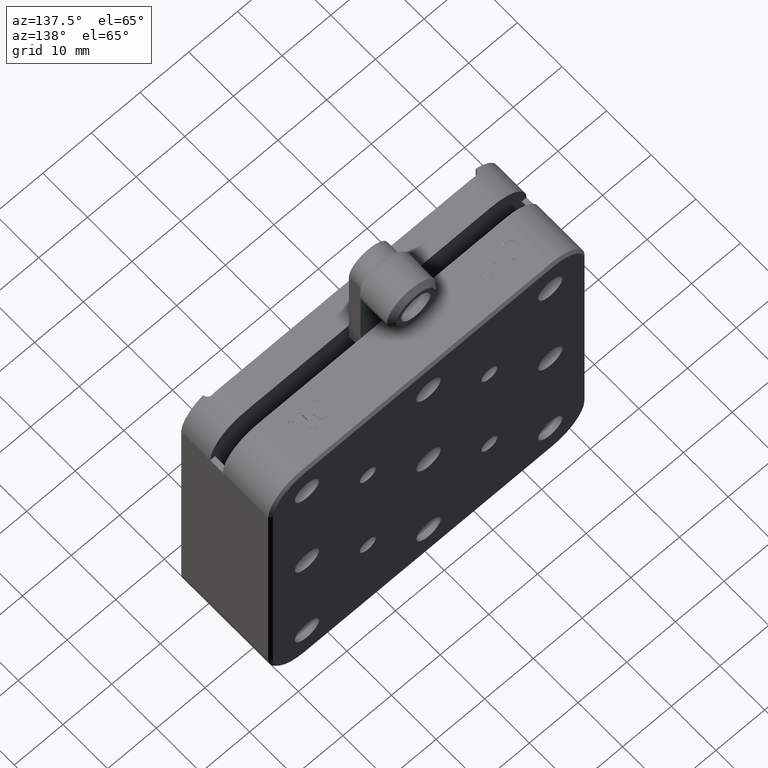
[diagram: clean part render]
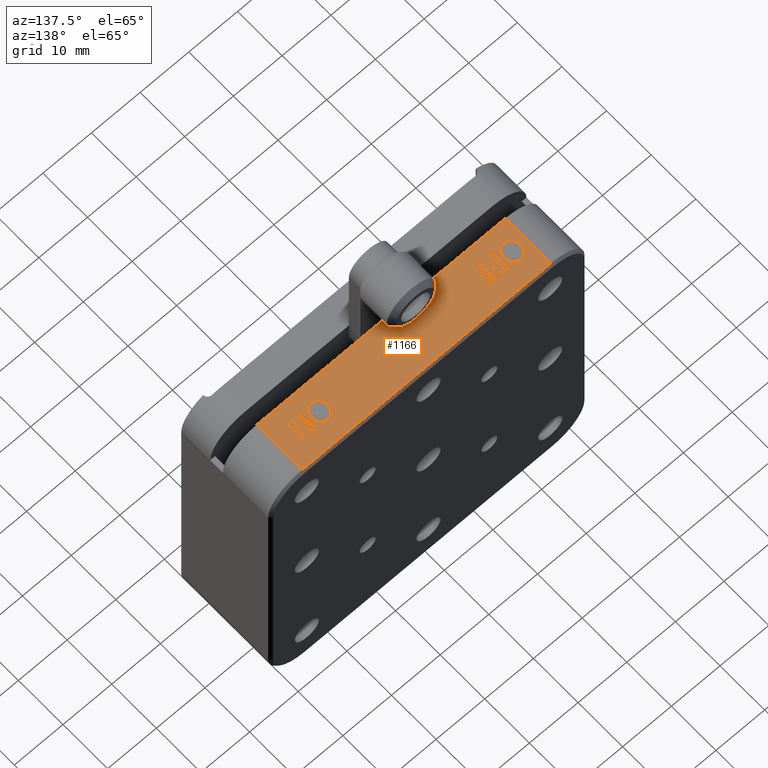
[diagram: same view with one face highlighted and labeled with its STEP entity id]
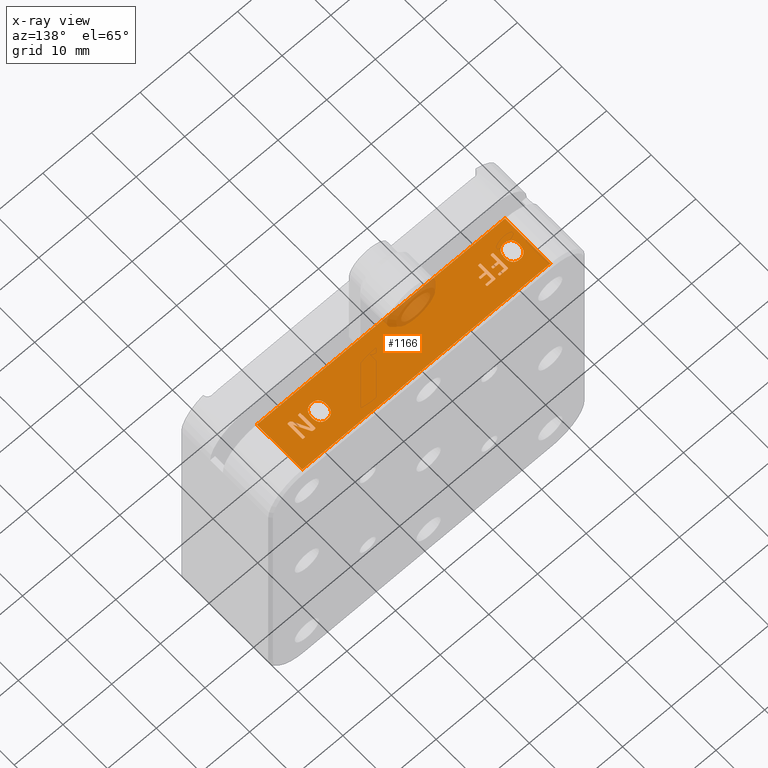
[diagram: x-ray of the same camera — body ghosted, the highlighted face saturated]
A machine part, auxiliary view. The second image highlights one B-rep face of the part: STEP entity #1166.
The next image is the same camera in x-ray: the body ghosted, the highlighted face saturated — about 5% of this face is hidden behind the body in this view.
In plain terms, the highlighted planar face has unit normal (-0, 0, -1).
Its self-contained STEP definition (entity closure, byte-faithful):
#1 = CARTESIAN_POINT ( 'NONE',  ( 18.35080497905968900, 11.64597473627316000, 32.49999999999999300 ) ) ;
#4 = LINE ( 'NONE', #8060, #4484 ) ;
#12 = CARTESIAN_POINT ( 'NONE',  ( -15.90196203141309700, 10.56985349229269600, 32.50000000000000000 ) ) ;
#43 = VERTEX_POINT ( 'NONE', #537 ) ;
#45 = ORIENTED_EDGE ( 'NONE', *, *, #2189, .T. ) ;
#77 = VERTEX_POINT ( 'NONE', #7221 ) ;
#79 = CARTESIAN_POINT ( 'NONE',  ( -20.08283547794123400, 12.30000000000000200, 32.50000000000000000 ) ) ;
#116 = CARTESIAN_POINT ( 'NONE',  ( 19.81222629466879000, 12.29961608199905000, 32.49999999999999300 ) ) ;
#119 = CARTESIAN_POINT ( 'NONE',  ( -18.49033156154950300, 12.29968267165791600, 32.50000000000000000 ) ) ;
#128 = B_SPLINE_CURVE_WITH_KNOTS ( 'NONE', 3,
 ( #956, #6866, #1809, #7710, #2651, #8539, #3520, #9391, #4352, #10235, #5211, #139, #6065, #999, #6899, #1846, #7744, #2688, #8575 ),
 .UNSPECIFIED., .F., .F.,
 ( 4, 1, 1, 1, 1, 1, 1, 1, 1, 1, 1, 1, 1, 1, 1, 1, 4 ),
 ( 0.0000000000000000000, 0.07446102563315551400, 0.1457228604095537900, 0.2135651578151750700, 0.2789551149234713600, 0.3414129264183052800, 0.4012820417274454700, 0.4590444461442615400, 0.5155741310407142600, 0.5712962021700083200, 0.6270250455033747900, 0.6831744106431206800, 0.7413246128063161200, 0.8013231598751918700, 0.8638373400361777400, 0.9298590865115861100, 0.9999999999999998900 ),
 .UNSPECIFIED. ) ;
#139 = CARTESIAN_POINT ( 'NONE',  ( -21.65351097233731500, 9.030382351489523200, 32.50000000000000000 ) ) ;
#181 = CARTESIAN_POINT ( 'NONE',  ( 19.84309489783387500, 8.866767725953648600, 32.49999999999999300 ) ) ;
#185 = VERTEX_POINT ( 'NONE', #2045 ) ;
#237 = VECTOR ( 'NONE', #2581, 1000.000000000000000 ) ;
#255 = CARTESIAN_POINT ( 'NONE',  ( -18.52822547239228300, 10.74550414859736900, 32.50000000000000000 ) ) ;
#261 = CARTESIAN_POINT ( 'NONE',  ( 19.86914165760335400, 11.73215600710031300, 32.49999999999999300 ) ) ;
#300 = CARTESIAN_POINT ( 'NONE',  ( -18.44067039077275500, 11.91416158248082600, 32.50000000000000000 ) ) ;
#332 = CARTESIAN_POINT ( 'NONE',  ( 18.55712276218409000, 10.52127559315951200, 32.49999999999999300 ) ) ;
#337 = CARTESIAN_POINT ( 'NONE',  ( -17.68159885855960000, 8.866993695119861100, 32.50000000000000000 ) ) ;
#349 = CARTESIAN_POINT ( 'NONE',  ( -18.49689797794123800, 12.30000000000000200, 32.50000000000000000 ) ) ;
#363 = EDGE_CURVE ( 'NONE', #3076, #77, #3283, .T. ) ;
#364 = CARTESIAN_POINT ( 'NONE',  ( 17.93428405340865000, 9.030382351489523200, 32.49999999999999300 ) ) ;
#366 = CARTESIAN_POINT ( 'NONE',  ( 21.55455594136651600, 8.802288411258922800, 32.49999999999999300 ) ) ;
#370 = CARTESIAN_POINT ( 'NONE',  ( 22.00691267280473800, 8.999448529411768800, 32.49999999999999300 ) ) ;
#379 = EDGE_CURVE ( 'NONE', #929, #955, #4089, .T. ) ;
#386 = DIRECTION ( 'NONE',  ( 0.0000000000000000000, -1.000000000000000000, 0.0000000000000000000 ) ) ;
#406 = CARTESIAN_POINT ( 'NONE',  ( 21.80187478576349100, 8.800423936139514700, 32.49999999999999300 ) ) ;
#420 = CARTESIAN_POINT ( 'NONE',  ( -17.17146734931647600, 8.867585231612796500, 32.50000000000000000 ) ) ;
#421 = CARTESIAN_POINT ( 'NONE',  ( 21.49220679045179600, 10.32883731617647300, 32.49999999999999300 ) ) ;
#439 = CARTESIAN_POINT ( 'NONE',  ( -20.25686801066612500, 12.12795061412866100, 32.50000000000000000 ) ) ;
#466 = CARTESIAN_POINT ( 'NONE',  ( 32.49999999999994300, 16.50000000000000000, 32.49999999999999300 ) ) ;
#473 = CARTESIAN_POINT ( 'NONE',  ( -15.86714097900804000, 11.91416158248082600, 32.50000000000000000 ) ) ;
#478 = LINE ( 'NONE', #3326, #4971 ) ;
#483 = CARTESIAN_POINT ( 'NONE',  ( 16.04473279311619600, 12.07063143685865500, 32.49999999999999300 ) ) ;
#490 = CARTESIAN_POINT ( 'NONE',  ( -22.63304227941182100, 8.748529411764709000, 32.50000000000000000 ) ) ;
#526 = CARTESIAN_POINT ( 'NONE',  ( -24.14792954108470700, 10.12656312011302800, 32.50000000000000000 ) ) ;
#527 = CARTESIAN_POINT ( 'NONE',  ( -24.16545876124272100, 10.73027158485056600, 32.50000000000000000 ) ) ;
#537 = CARTESIAN_POINT ( 'NONE',  ( -22.56227022058829200, 12.35147058823529800, 32.50000000000000000 ) ) ;
#564 = CARTESIAN_POINT ( 'NONE',  ( -22.93677492775234200, 12.32269430051712800, 32.50000000000000000 ) ) ;
#565 = VERTEX_POINT ( 'NONE', #9333 ) ;
#567 = CARTESIAN_POINT ( 'NONE',  ( -21.50740140549802200, 12.00331151307090500, 32.50000000000000000 ) ) ;
#570 = CARTESIAN_POINT ( 'NONE',  ( 21.50402155449214100, 12.25117044955443500, 32.49999999999999300 ) ) ;
#594 = CARTESIAN_POINT ( 'NONE',  ( -19.74264705882358900, 8.886856617647060500, 32.50000000000000000 ) ) ;
#596 = VERTEX_POINT ( 'NONE', #349 ) ;
#635 = DIRECTION ( 'NONE',  ( -0.0000000000000000000, 1.000000000000000000, -0.0000000000000000000 ) ) ;
#637 = CARTESIAN_POINT ( 'NONE',  ( 19.84514796692238600, 10.98910845588235800, 32.49999999999999300 ) ) ;
#639 = CARTESIAN_POINT ( 'NONE',  ( 19.36006046821602000, 8.832959859646761600, 32.49999999999999300 ) ) ;
#670 = LINE ( 'NONE', #2880, #4896 ) ;
#681 = CARTESIAN_POINT ( 'NONE',  ( -15.83088235294123300, 12.09090073529412000, 32.50000000000000000 ) ) ;
#714 = ORIENTED_EDGE ( 'NONE', *, *, #9351, .T. ) ;
#744 = CARTESIAN_POINT ( 'NONE',  ( 16.89087130156905700, 8.749723451497128900, 32.49999999999999300 ) ) ;
#776 = CARTESIAN_POINT ( 'NONE',  ( -15.90165441176476500, 10.55160845588235800, 32.50000000000000000 ) ) ;
#788 = ORIENTED_EDGE ( 'NONE', *, *, #6861, .T. ) ;
#803 = CARTESIAN_POINT ( 'NONE',  ( 21.97714953847315700, 12.26609471620823500, 32.49999999999999300 ) ) ;
#810 = CARTESIAN_POINT ( 'NONE',  ( 16.13053417176195500, 8.928564831356268900, 32.49999999999999300 ) ) ;
#813 = CARTESIAN_POINT ( 'NONE',  ( 17.02552480515768400, 12.35147058823529800, 32.49999999999999300 ) ) ;
#827 = CARTESIAN_POINT ( 'NONE',  ( -18.51190834495501000, 10.37314432829288600, 32.50000000000000000 ) ) ;
#828 = ORIENTED_EDGE ( 'NONE', *, *, #5237, .T. ) ;
#843 = ORIENTED_EDGE ( 'NONE', *, *, #6019, .T. ) ;
#844 = CARTESIAN_POINT ( 'NONE',  ( 21.37668832312993300, 9.697409605318014800, 32.49999999999999300 ) ) ;
#852 = VERTEX_POINT ( 'NONE', #2102 ) ;
#855 = CARTESIAN_POINT ( 'NONE',  ( 18.46770385069312300, 11.34162211621852400, 32.49999999999999300 ) ) ;
#872 = B_SPLINE_CURVE_WITH_KNOTS ( 'NONE', 3,
 ( #3743, #8767, #366, #6284, #1219, #7111, #2057, #7957, #2917, #8802, #3789 ),
 .UNSPECIFIED., .F., .F.,
 ( 4, 1, 1, 1, 1, 1, 1, 1, 4 ),
 ( 0.0000000000000000000, 0.1186541165544692000, 0.2231089645201714000, 0.3207882493149800700, 0.4237393658583690800, 0.5380275543541398500, 0.6692189723661683400, 0.8223214556976855500, 0.9999999999999998900 ),
 .UNSPECIFIED. ) ;
#891 = LINE ( 'NONE', #2336, #2874 ) ;
#899 = VECTOR ( 'NONE', #9613, 1000.000000000000000 ) ;
#929 = VERTEX_POINT ( 'NONE', #5640 ) ;
#947 = ORIENTED_EDGE ( 'NONE', *, *, #1312, .T. ) ;
#955 = VERTEX_POINT ( 'NONE', #9884 ) ;
#956 = CARTESIAN_POINT ( 'NONE',  ( -21.02941176470593700, 10.59021139705882500, 32.50000000000000000 ) ) ;
#972 = EDGE_CURVE ( 'NONE', #852, #5880, #1695, .T. ) ;
#975 = CARTESIAN_POINT ( 'NONE',  ( -18.45886996868150500, 12.28872841005573400, 32.50000000000000000 ) ) ;
#999 = CARTESIAN_POINT ( 'NONE',  ( -21.93127501137358600, 8.873611202825429700, 32.50000000000000000 ) ) ;
#1002 = VERTEX_POINT ( 'NONE', #6577 ) ;
#1017 = CARTESIAN_POINT ( 'NONE',  ( -15.92448697696090700, 10.71135436303309000, 32.50000000000000000 ) ) ;
#1041 = CARTESIAN_POINT ( 'NONE',  ( 19.81451778936066100, 8.832446821397221400, 32.49999999999999300 ) ) ;
#1046 = ORIENTED_EDGE ( 'NONE', *, *, #3725, .T. ) ;
#1075 = ORIENTED_EDGE ( 'NONE', *, *, #7868, .T. ) ;
#1091 = CARTESIAN_POINT ( 'NONE',  ( 19.33044208456944400, 12.10055147058824000, 32.49999999999999300 ) ) ;
#1114 = CARTESIAN_POINT ( 'NONE',  ( -18.49801638872561700, 10.71135436303309200, 32.50000000000000000 ) ) ;
#1117 = VERTEX_POINT ( 'NONE', #10468 ) ;
#1153 = CARTESIAN_POINT ( 'NONE',  ( -18.47494251265819500, 11.89040486751371100, 32.50000000000000000 ) ) ;
#1165 = FACE_BOUND ( 'NONE', #1560, .T. ) ;
#1166 = ADVANCED_FACE ( 'NONE', ( #3685, #8150, #5672, #3418, #1165, #9861 ), #8022, .F. ) ;
#1185 = CARTESIAN_POINT ( 'NONE',  ( -17.68382352941182100, 8.886052389705884700, 32.50000000000000000 ) ) ;
#1212 = CARTESIAN_POINT ( 'NONE',  ( -17.50930606617652400, 12.30000000000000200, 32.50000000000000000 ) ) ;
#1218 = CARTESIAN_POINT ( 'NONE',  ( 17.65652001437239300, 8.873611202825429700, 32.49999999999999300 ) ) ;
#1219 = CARTESIAN_POINT ( 'NONE',  ( 21.43001157655738000, 8.835708072798123400, 32.49999999999999300 ) ) ;
#1229 = CARTESIAN_POINT ( 'NONE',  ( 19.84514796692238600, 11.78609834558823600, 32.49999999999999300 ) ) ;
#1272 = CARTESIAN_POINT ( 'NONE',  ( -17.19826659661682600, 8.832227494626970100, 32.50000000000000000 ) ) ;
#1288 = EDGE_CURVE ( 'NONE', #3558, #6396, #4551, .T. ) ;
#1297 = CARTESIAN_POINT ( 'NONE',  ( -20.25595865102590700, 12.15821685013504800, 32.50000000000000000 ) ) ;
#1310 = B_SPLINE_CURVE_WITH_KNOTS ( 'NONE', 3,
 ( #2808, #7857, #9546, #4493, #10377, #5368, #300, #6213, #1153, #7055, #1990 ),
 .UNSPECIFIED., .F., .F.,
 ( 4, 1, 1, 1, 1, 1, 1, 1, 4 ),
 ( 0.0000000000000000000, 0.2050984483181059700, 0.3811114567396271000, 0.5296016567166761400, 0.6542371916426372700, 0.7569461913711699200, 0.8459101554599762800, 0.9228131897307776400, 0.9999999999999998900 ),
 .UNSPECIFIED. ) ;
#1312 = EDGE_CURVE ( 'NONE', #43, #6944, #2585, .T. ) ;
#1322 = DIRECTION ( 'NONE',  ( -1.000000000000000000, 0.0000000000000000000, 1.067522139062650300E-016 ) ) ;
#1330 = CARTESIAN_POINT ( 'NONE',  ( -15.90141310089349100, 11.89040486751371100, 32.50000000000000000 ) ) ;
#1340 = CARTESIAN_POINT ( 'NONE',  ( 16.32252798257189500, 12.22641694806106100, 32.49999999999999300 ) ) ;
#1348 = CARTESIAN_POINT ( 'NONE',  ( -23.16577030607545500, 8.810515144274965800, 32.50000000000000000 ) ) ;
#1350 = CARTESIAN_POINT ( 'NONE',  ( 19.33044208456944400, 12.10055147058824000, 32.49999999999999300 ) ) ;
#1357 = DIRECTION ( 'NONE',  ( 1.000000000000000000, 0.0000000000000000000, -1.067522139062650300E-016 ) ) ;
#1365 = ORIENTED_EDGE ( 'NONE', *, *, #8179, .T. ) ;
#1374 = VECTOR ( 'NONE', #6279, 1000.000000000000000 ) ;
#1383 = CARTESIAN_POINT ( 'NONE',  ( -24.16820003352815100, 10.46068569274915400, 32.50000000000000000 ) ) ;
#1384 = CARTESIAN_POINT ( 'NONE',  ( -24.11577555173710200, 11.10725650309312600, 32.50000000000000000 ) ) ;
#1388 = EDGE_CURVE ( 'NONE', #2417, #2698, #5383, .T. ) ;
#1415 = CARTESIAN_POINT ( 'NONE',  ( -22.62722424158126000, 12.35001898143650800, 32.50000000000000000 ) ) ;
#1416 = CARTESIAN_POINT ( 'NONE',  ( -21.31598844183833900, 11.77748422914717700, 32.50000000000000000 ) ) ;
#1419 = CARTESIAN_POINT ( 'NONE',  ( 21.54915127167119600, 12.27923675271318200, 32.49999999999999300 ) ) ;
#1420 = DIRECTION ( 'NONE',  ( 1.000000000000000000, 0.0000000000000000000, -1.067522139062650300E-016 ) ) ;
#1423 = B_SPLINE_CURVE_WITH_KNOTS ( 'NONE', 3,
 ( #1446, #5680, #9888, #4843, #10711, #5714, #639, #6547, #1481, #7384, #2334 ),
 .UNSPECIFIED., .F., .F.,
 ( 4, 1, 1, 1, 1, 1, 1, 1, 4 ),
 ( 0.0000000000000000000, 0.2362224828584658900, 0.4264135999576101300, 0.5799213763692415700, 0.6984786828821241100, 0.7905833487290971900, 0.8683498488893369700, 0.9358932705104522400, 0.9999999999999998900 ),
 .UNSPECIFIED. ) ;
#1425 = VERTEX_POINT ( 'NONE', #1487 ) ;
#1426 = CARTESIAN_POINT ( 'NONE',  ( 19.84514796692238600, 11.78609834558823600, 32.49999999999999300 ) ) ;
#1440 = CARTESIAN_POINT ( 'NONE',  ( -19.74340696628544500, 8.880624138616825600, 32.50000000000000000 ) ) ;
#1446 = CARTESIAN_POINT ( 'NONE',  ( 19.58618656986356400, 8.800000000000002500, 32.49999999999999300 ) ) ;
#1454 = CARTESIAN_POINT ( 'NONE',  ( -17.16911764705887900, 8.886856617647060500, 32.50000000000000000 ) ) ;
#1481 = CARTESIAN_POINT ( 'NONE',  ( 19.33266838953785400, 8.866996759615315000, 32.49999999999999300 ) ) ;
#1483 = CARTESIAN_POINT ( 'NONE',  ( -15.99092371323535000, 10.75588235294118000, 32.50000000000000000 ) ) ;
#1487 = CARTESIAN_POINT ( 'NONE',  ( 21.62490440074591900, 8.800000000000002500, 32.49999999999999300 ) ) ;
#1523 = VERTEX_POINT ( 'NONE', #8404 ) ;
#1540 = CARTESIAN_POINT ( 'NONE',  ( 21.75438509927532800, 12.30000000000000200, 32.49999999999999300 ) ) ;
#1552 = B_SPLINE_CURVE_WITH_KNOTS ( 'NONE', 3,
 ( #490, #10570, #4700, #6408, #1348, #7241, #2190, #8085, #3055, #8936, #3906, #9778, #4732, #10604, #5604, #526, #6445, #1383, #7280 ),
 .UNSPECIFIED., .F., .F.,
 ( 4, 1, 1, 1, 1, 1, 1, 1, 1, 1, 1, 1, 1, 1, 1, 1, 4 ),
 ( 0.0000000000000000000, 0.07109031842491273000, 0.1378790705171073200, 0.2005254769301891300, 0.2598032200447118500, 0.3166786078106603200, 0.3716680261934053900, 0.4259776209961932400, 0.4800241023041461100, 0.5350653425086233600, 0.5917469411016135200, 0.6508146456421999300, 0.7130179021708154000, 0.7789048107866402000, 0.8483468014230252100, 0.9220672764071999900, 0.9999999999999998900 ),
 .UNSPECIFIED. ) ;
#1553 = VECTOR ( 'NONE', #3857, 1000.000000000000100 ) ;
#1560 = EDGE_LOOP ( 'NONE', ( #8249, #5036, #3366, #947 ) ) ;
#1597 = CARTESIAN_POINT ( 'NONE',  ( 19.33044208456944400, 8.886052389705884700, 32.49999999999999300 ) ) ;
#1622 = CARTESIAN_POINT ( 'NONE',  ( 21.01166724775210100, 10.44202626635675900, 32.49999999999999300 ) ) ;
#1639 = VECTOR ( 'NONE', #7641, 1000.000000000000000 ) ;
#1654 = CARTESIAN_POINT ( 'NONE',  ( 22.00488504688549400, 12.23251597009174700, 32.49999999999999300 ) ) ;
#1661 = CARTESIAN_POINT ( 'NONE',  ( 15.88964894102528200, 9.100789051684950300, 32.49999999999999300 ) ) ;
#1666 = CARTESIAN_POINT ( 'NONE',  ( 17.20947258068969500, 12.34756229340600700, 32.49999999999999300 ) ) ;
#1678 = CARTESIAN_POINT ( 'NONE',  ( -18.48649150760832100, 10.42371502362163900, 32.50000000000000000 ) ) ;
#1686 = CARTESIAN_POINT ( 'NONE',  ( 21.47817211651893700, 9.487966132619742900, 32.49999999999999300 ) ) ;
#1695 = LINE ( 'NONE', #3999, #8160 ) ;
#1696 = CARTESIAN_POINT ( 'NONE',  ( -17.16911764705887900, 10.34411764705882700, 32.50000000000000000 ) ) ;
#1698 = CARTESIAN_POINT ( 'NONE',  ( 18.53762329629026000, 10.98781277663557500, 32.49999999999999300 ) ) ;
#1780 = B_SPLINE_CURVE_WITH_KNOTS ( 'NONE', 3,
 ( #4733, #6334, #527, #6446, #1384, #7281, #2225, #8129, #3095, #8971, #3935, #9822, #4768, #10639, #5646, #564, #6475, #1415, #7316 ),
 .UNSPECIFIED., .F., .F.,
 ( 4, 1, 1, 1, 1, 1, 1, 1, 1, 1, 1, 1, 1, 1, 1, 1, 4 ),
 ( 0.0000000000000000000, 0.07345351932000157600, 0.1434043684259346800, 0.2107936022879991800, 0.2757300458089050300, 0.3382885255915655800, 0.3979888394957087300, 0.4558480894082483400, 0.5124257040295806500, 0.5684727693349378400, 0.6243514860412804300, 0.6810841563438496700, 0.7391944427549919100, 0.7995543392936767000, 0.8627284686456474500, 0.9294366532504629900, 1.000000000000000000 ),
 .UNSPECIFIED. ) ;
#1789 = EDGE_CURVE ( 'NONE', #9905, #6403, #2013, .T. ) ;
#1798 = DIRECTION ( 'NONE',  ( -1.000000000000000000, 0.0000000000000000000, 1.067522139062650300E-016 ) ) ;
#1800 = CARTESIAN_POINT ( 'NONE',  ( 17.02552480515768400, 12.35147058823529800, 32.49999999999999300 ) ) ;
#1805 = EDGE_CURVE ( 'NONE', #4050, #7688, #478, .T. ) ;
#1809 = CARTESIAN_POINT ( 'NONE',  ( -21.03313910439936400, 10.38636578707744800, 32.50000000000000000 ) ) ;
#1822 = CARTESIAN_POINT ( 'NONE',  ( 19.86083438134237900, 12.29891428882316100, 32.49999999999999300 ) ) ;
#1825 = CARTESIAN_POINT ( 'NONE',  ( -18.42833493878865900, 12.25027657262428500, 32.50000000000000000 ) ) ;
#1831 = EDGE_CURVE ( 'NONE', #2743, #596, #3135, .T. ) ;
#1837 = LINE ( 'NONE', #8367, #4091 ) ;
#1846 = CARTESIAN_POINT ( 'NONE',  ( -22.25932352382097400, 8.777273458103492100, 32.50000000000000000 ) ) ;
#1852 = CARTESIAN_POINT ( 'NONE',  ( 18.55838326104003900, 10.59021139705882700, 32.49999999999999300 ) ) ;
#1854 = CARTESIAN_POINT ( 'NONE',  ( -15.98464299416114900, 10.75551325960624800, 32.50000000000000000 ) ) ;
#1860 = EDGE_CURVE ( 'NONE', #6594, #1523, #6551, .T. ) ;
#1879 = CARTESIAN_POINT ( 'NONE',  ( 19.75193807132822200, 8.814019770963053400, 32.49999999999999300 ) ) ;
#1888 = VERTEX_POINT ( 'NONE', #10253 ) ;
#1933 = CARTESIAN_POINT ( 'NONE',  ( 21.16890715809885700, 9.155468750000002500, 32.49999999999999300 ) ) ;
#1950 = CARTESIAN_POINT ( 'NONE',  ( -18.47987983747826100, 10.64779810193858200, 32.50000000000000000 ) ) ;
#1952 = B_SPLINE_CURVE_WITH_KNOTS ( 'NONE', 3,
 ( #594, #1440, #7344, #2290, #8191, #3156, #9042, #3996, #9882, #4840, #10704 ),
 .UNSPECIFIED., .F., .F.,
 ( 4, 1, 1, 1, 1, 1, 1, 1, 4 ),
 ( 0.0000000000000000000, 0.06359015496305539500, 0.1330363267830501600, 0.2081785362049596900, 0.3044445195314931500, 0.4246979714320564000, 0.5742896036221633000, 0.7602346403189320600, 1.000000000000000000 ),
 .UNSPECIFIED. ) ;
#1963 = VERTEX_POINT ( 'NONE', #3612 ) ;
#1986 = CARTESIAN_POINT ( 'NONE',  ( -17.42647058823535000, 8.800000000000002500, 32.50000000000000000 ) ) ;
#1990 = CARTESIAN_POINT ( 'NONE',  ( -18.49368106617653100, 11.88823529411765100, 32.50000000000000000 ) ) ;
#1991 = CARTESIAN_POINT ( 'NONE',  ( 20.15557995221650200, 11.13708639705882900, 32.49999999999999300 ) ) ;
#2010 = LINE ( 'NONE', #2273, #8468 ) ;
#2013 = B_SPLINE_CURVE_WITH_KNOTS ( 'NONE', 3,
 ( #2387, #4169, #9208, #5013, #10880, #5878, #803, #6710, #1654, #7545, #2497 ),
 .UNSPECIFIED., .F., .F.,
 ( 4, 1, 1, 1, 1, 1, 1, 1, 4 ),
 ( 0.0000000000000000000, 0.2228701545485031700, 0.4155394901390313000, 0.5730832630055064900, 0.6963807679519478100, 0.7935371964723340100, 0.8703650289957993700, 0.9377253558207129200, 1.000000000000000000 ),
 .UNSPECIFIED. ) ;
#2016 = CARTESIAN_POINT ( 'NONE',  ( 18.55465592134660800, 10.38636578707744800, 32.49999999999999300 ) ) ;
#2045 = CARTESIAN_POINT ( 'NONE',  ( -17.42647058823535000, 8.800000000000002500, 32.50000000000000000 ) ) ;
#2046 = VECTOR ( 'NONE', #1798, 1000.000000000000000 ) ;
#2054 = ORIENTED_EDGE ( 'NONE', *, *, #3825, .T. ) ;
#2055 = CARTESIAN_POINT ( 'NONE',  ( 17.32847150192499800, 8.777273458103492100, 32.49999999999999300 ) ) ;
#2057 = CARTESIAN_POINT ( 'NONE',  ( 21.32218092003419200, 8.919697711589011000, 32.49999999999999300 ) ) ;
#2072 = CARTESIAN_POINT ( 'NONE',  ( 19.54034557721650600, 12.30000000000000200, 32.49999999999999300 ) ) ;
#2102 = CARTESIAN_POINT ( 'NONE',  ( 25.49999999999995000, 5.800000000000002500, 32.49999999999999300 ) ) ;
#2109 = CARTESIAN_POINT ( 'NONE',  ( -17.26045881624754900, 8.814085392070952100, 32.50000000000000000 ) ) ;
#2134 = CARTESIAN_POINT ( 'NONE',  ( -20.22775573004600200, 12.23376663625268900, 32.50000000000000000 ) ) ;
#2141 = CARTESIAN_POINT ( 'NONE',  ( 15.42233626450324000, 10.73027158485056600, 32.49999999999999300 ) ) ;
#2151 = DIRECTION ( 'NONE',  ( 0.0000000000000000000, -1.000000000000000000, 0.0000000000000000000 ) ) ;
#2166 = CARTESIAN_POINT ( 'NONE',  ( -15.92015165441182000, 11.88823529411765100, 32.50000000000000000 ) ) ;
#2180 = CARTESIAN_POINT ( 'NONE',  ( 16.65102009799363000, 12.32269430051712400, 32.49999999999999300 ) ) ;
#2189 = EDGE_CURVE ( 'NONE', #6127, #9565, #4, .T. ) ;
#2190 = CARTESIAN_POINT ( 'NONE',  ( -23.45726085398403900, 8.928564831356268900, 32.50000000000000000 ) ) ;
#2193 = CARTESIAN_POINT ( 'NONE',  ( 19.33207460989054700, 12.14892573269292300, 32.49999999999999300 ) ) ;
#2225 = CARTESIAN_POINT ( 'NONE',  ( -24.01612205727206700, 11.44460046178305900, 32.50000000000000000 ) ) ;
#2252 = CARTESIAN_POINT ( 'NONE',  ( 22.00691267280473800, 12.21394761029412000, 32.49999999999999300 ) ) ;
#2256 = CARTESIAN_POINT ( 'NONE',  ( 19.83951837133415100, 11.78609834558823600, 32.49999999999999300 ) ) ;
#2263 = CARTESIAN_POINT ( 'NONE',  ( -21.17350952681268300, 11.49973078943545500, 32.50000000000000000 ) ) ;
#2265 = CARTESIAN_POINT ( 'NONE',  ( 21.63038810795794100, 12.29520289989238800, 32.49999999999999300 ) ) ;
#2273 = CARTESIAN_POINT ( 'NONE',  ( -15.92015165441182000, 11.88823529411765100, 32.50000000000000000 ) ) ;
#2278 = LINE ( 'NONE', #8601, #4258 ) ;
#2290 = CARTESIAN_POINT ( 'NONE',  ( -19.75390331048107500, 8.848552756695554000, 32.50000000000000000 ) ) ;
#2291 = CARTESIAN_POINT ( 'NONE',  ( -19.74264705882358900, 10.34411764705882700, 32.50000000000000000 ) ) ;
#2295 = VERTEX_POINT ( 'NONE', #1800 ) ;
#2299 = B_SPLINE_CURVE_WITH_KNOTS ( 'NONE', 3,
 ( #2256, #4000, #9886, #4842, #10709, #5713, #637 ),
 .UNSPECIFIED., .F., .F.,
 ( 4, 1, 1, 1, 4 ),
 ( 0.0000000000000000000, 0.2452440474129362600, 0.4964984275176029800, 0.7487537243524717800, 1.000000000000000000 ),
 .UNSPECIFIED. ) ;
#2334 = CARTESIAN_POINT ( 'NONE',  ( 19.33044208456944400, 8.886052389705884700, 32.49999999999999300 ) ) ;
#2336 = CARTESIAN_POINT ( 'NONE',  ( 32.49999999999994300, 5.800000000000002500, 32.49999999999999300 ) ) ;
#2339 = CARTESIAN_POINT ( 'NONE',  ( -15.91680214978479300, 12.29968267165791600, 32.50000000000000000 ) ) ;
#2387 = CARTESIAN_POINT ( 'NONE',  ( 21.75438509927532800, 12.30000000000000200, 32.49999999999999300 ) ) ;
#2417 = VERTEX_POINT ( 'NONE', #8711 ) ;
#2448 = LINE ( 'NONE', #1696, #6940 ) ;
#2460 = CARTESIAN_POINT ( 'NONE',  ( -20.06331812387900400, 8.800895207265956100, 32.50000000000000000 ) ) ;
#2468 = CARTESIAN_POINT ( 'NONE',  ( -15.90629968424644000, 10.45992553750438800, 32.50000000000000000 ) ) ;
#2475 = DIRECTION ( 'NONE',  ( 0.0000000000000000000, 1.000000000000000000, 0.0000000000000000000 ) ) ;
#2487 = LINE ( 'NONE', #4244, #237 ) ;
#2493 = B_SPLINE_CURVE_WITH_KNOTS ( 'NONE', 3,
 ( #7882, #7044, #2839, #8725, #3707, #9571, #4529, #10406, #5404 ),
 .UNSPECIFIED., .F., .F.,
 ( 4, 1, 1, 1, 1, 1, 4 ),
 ( 0.0000000000000000000, 0.1667855106719272100, 0.3127623622804004400, 0.4393796381109113000, 0.5590309031635271000, 0.7861446902931102900, 1.000000000000000000 ),
 .UNSPECIFIED. ) ;
#2497 = CARTESIAN_POINT ( 'NONE',  ( 22.00691267280473800, 12.21394761029412000, 32.49999999999999300 ) ) ;
#2505 = CARTESIAN_POINT ( 'NONE',  ( 15.69905717183813300, 9.327070447163169600, 32.49999999999999300 ) ) ;
#2509 = DIRECTION ( 'NONE',  ( 0.0000000000000000000, -1.000000000000000000, 0.0000000000000000000 ) ) ;
#2511 = CARTESIAN_POINT ( 'NONE',  ( 17.54865058694954200, 12.28898620787648500, 32.49999999999999300 ) ) ;
#2521 = CARTESIAN_POINT ( 'NONE',  ( -18.47616234597969500, 10.50327506897457900, 32.50000000000000000 ) ) ;
#2534 = ORIENTED_EDGE ( 'NONE', *, *, #8423, .T. ) ;
#2536 = EDGE_CURVE ( 'NONE', #10182, #10541, #8420, .T. ) ;
#2544 = CARTESIAN_POINT ( 'NONE',  ( 18.55743039053718100, 10.65914607532970100, 32.49999999999999300 ) ) ;
#2581 = DIRECTION ( 'NONE',  ( 0.0000000000000000000, 1.000000000000000000, 0.0000000000000000000 ) ) ;
#2585 = B_SPLINE_CURVE_WITH_KNOTS ( 'NONE', 3,
 ( #6447, #3097, #8974, #3937, #9824, #4769, #10644, #5647, #567, #6477, #1416, #7318, #2263, #8161, #3136, #9012, #3977, #9853, #4819 ),
 .UNSPECIFIED., .F., .F.,
 ( 4, 1, 1, 1, 1, 1, 1, 1, 1, 1, 1, 1, 1, 1, 1, 1, 4 ),
 ( 0.0000000000000000000, 0.07026576159053703200, 0.1364609238589401500, 0.1988910119823642000, 0.2580690767965246900, 0.3152325765986259100, 0.3705891000740713100, 0.4254636981428015500, 0.4802364288076102500, 0.5357444852390945700, 0.5929032190994263400, 0.6522613140421849000, 0.7145836711308558600, 0.7802914091906340000, 0.8495994651625241600, 0.9225255947980658400, 1.000000000000000000 ),
 .UNSPECIFIED. ) ;
#2620 = CARTESIAN_POINT ( 'NONE',  ( 19.84514796692238600, 8.886052389705884700, 32.49999999999999300 ) ) ;
#2648 = ORIENTED_EDGE ( 'NONE', *, *, #10009, .T. ) ;
#2651 = CARTESIAN_POINT ( 'NONE',  ( -21.08282794887568200, 10.00243612264131500, 32.50000000000000000 ) ) ;
#2654 = VECTOR ( 'NONE', #10611, 1000.000000000000000 ) ;
#2664 = CARTESIAN_POINT ( 'NONE',  ( 19.98610949577671600, 12.27092880606668700, 32.49999999999999300 ) ) ;
#2667 = CARTESIAN_POINT ( 'NONE',  ( -18.40931913785100000, 12.18354830333842600, 32.50000000000000000 ) ) ;
#2685 = CARTESIAN_POINT ( 'NONE',  ( -17.16911764705887900, 10.75588235294118000, 32.50000000000000000 ) ) ;
#2688 = CARTESIAN_POINT ( 'NONE',  ( -22.56808827100908100, 8.749972960753007500, 32.50000000000000000 ) ) ;
#2698 = VERTEX_POINT ( 'NONE', #9301 ) ;
#2703 = CARTESIAN_POINT ( 'NONE',  ( -15.93759379053493000, 10.73261756869196800, 32.50000000000000000 ) ) ;
#2723 = B_SPLINE_CURVE_WITH_KNOTS ( 'NONE', 3,
 ( #776, #5850, #7519, #2468, #8358, #3331, #9215, #4177, #10046, #5020, #10885 ),
 .UNSPECIFIED., .F., .F.,
 ( 4, 1, 1, 1, 1, 1, 1, 1, 4 ),
 ( 0.0000000000000000000, 0.2054820159220049100, 0.3822737874015003600, 0.5286826896541254600, 0.6515712833323520400, 0.7528406728546523900, 0.8450467464262928500, 0.9238950707747368700, 1.000000000000000000 ),
 .UNSPECIFIED. ) ;
#2729 = CARTESIAN_POINT ( 'NONE',  ( 19.65085315720711300, 8.800802453793700400, 32.49999999999999300 ) ) ;
#2743 = VERTEX_POINT ( 'NONE', #79 ) ;
#2760 = VERTEX_POINT ( 'NONE', #1852 ) ;
#2766 = CARTESIAN_POINT ( 'NONE',  ( -18.56445312500006400, 10.75588235294118000, 32.50000000000000000 ) ) ;
#2791 = LINE ( 'NONE', #6304, #5043 ) ;
#2803 = CARTESIAN_POINT ( 'NONE',  ( -18.47549144317780500, 10.56985349229269700, 32.50000000000000000 ) ) ;
#2808 = CARTESIAN_POINT ( 'NONE',  ( -18.40441176470594400, 12.09090073529411800, 32.50000000000000000 ) ) ;
#2816 = ORIENTED_EDGE ( 'NONE', *, *, #10089, .T. ) ;
#2839 = CARTESIAN_POINT ( 'NONE',  ( -17.68242923926118900, 12.15821685013504400, 32.50000000000000000 ) ) ;
#2843 = CARTESIAN_POINT ( 'NONE',  ( -17.44871697725019300, 8.800314524939583500, 32.50000000000000000 ) ) ;
#2853 = EDGE_CURVE ( 'NONE', #9592, #185, #8102, .T. ) ;
#2873 = CARTESIAN_POINT ( 'NONE',  ( 18.50496707687029400, 10.00243612264131700, 32.49999999999999300 ) ) ;
#2874 = VECTOR ( 'NONE', #4847, 1000.000000000000000 ) ;
#2880 = CARTESIAN_POINT ( 'NONE',  ( 21.78896690074591500, 8.800000000000002500, 32.49999999999999300 ) ) ;
#2881 = EDGE_CURVE ( 'NONE', #9283, #6726, #1552, .T. ) ;
#2915 = CARTESIAN_POINT ( 'NONE',  ( 17.01970675473689800, 8.749972960753007500, 32.49999999999999300 ) ) ;
#2917 = CARTESIAN_POINT ( 'NONE',  ( 21.21709388658512600, 9.062473078982366200, 32.49999999999999300 ) ) ;
#2922 = CARTESIAN_POINT ( 'NONE',  ( 22.00475051643432400, 8.951128476091186700, 32.49999999999999300 ) ) ;
#2935 = CARTESIAN_POINT ( 'NONE',  ( 21.50024906986356800, 9.445795036764709000, 32.49999999999999300 ) ) ;
#2950 = EDGE_LOOP ( 'NONE', ( #9603, #7825, #8485, #10508 ) ) ;
#2974 = CARTESIAN_POINT ( 'NONE',  ( -17.36099899551146200, 8.800746502222192900, 32.50000000000000000 ) ) ;
#2982 = CARTESIAN_POINT ( 'NONE',  ( 16.95475274633415100, 8.748529411764709000, 32.50000000000000000 ) ) ;
#2995 = CARTESIAN_POINT ( 'NONE',  ( -15.83088235294123300, 12.09090073529412000, 32.50000000000000000 ) ) ;
#3000 = CARTESIAN_POINT ( 'NONE',  ( -20.14619790600910700, 12.29331383264332300, 32.50000000000000000 ) ) ;
#3005 = CARTESIAN_POINT ( 'NONE',  ( 15.47201947400888000, 11.10725650309312600, 32.49999999999999300 ) ) ;
#3019 = DIRECTION ( 'NONE',  ( 0.0000000000000000000, -1.000000000000000000, 0.0000000000000000000 ) ) ;
#3024 = ORIENTED_EDGE ( 'NONE', *, *, #379, .T. ) ;
#3044 = EDGE_CURVE ( 'NONE', #7688, #852, #891, .T. ) ;
#3045 = CARTESIAN_POINT ( 'NONE',  ( 16.96057078416471200, 12.35001898143650600, 32.49999999999999300 ) ) ;
#3055 = CARTESIAN_POINT ( 'NONE',  ( -23.69814608472068700, 9.100789051684950300, 32.50000000000000000 ) ) ;
#3059 = CARTESIAN_POINT ( 'NONE',  ( 19.36541426613524700, 12.22892136671076300, 32.49999999999999300 ) ) ;
#3061 = CARTESIAN_POINT ( 'NONE',  ( -19.74264705882358900, 10.34411764705882700, 32.50000000000000000 ) ) ;
#3076 = VERTEX_POINT ( 'NONE', #1483 ) ;
#3090 = LINE ( 'NONE', #5040, #9519 ) ;
#3095 = CARTESIAN_POINT ( 'NONE',  ( -23.86513375288639000, 11.73373460810680800, 32.50000000000000000 ) ) ;
#3097 = CARTESIAN_POINT ( 'NONE',  ( -22.49974694009095800, 12.35014217089961300, 32.50000000000000000 ) ) ;
#3101 = CARTESIAN_POINT ( 'NONE',  ( 21.49220679045179600, 12.21394761029412000, 32.49999999999999300 ) ) ;
#3135 = LINE ( 'NONE', #3435, #5367 ) ;
#3136 = CARTESIAN_POINT ( 'NONE',  ( -21.07977449303295700, 11.17052868314102200, 32.50000000000000000 ) ) ;
#3141 = CARTESIAN_POINT ( 'NONE',  ( 21.73051450290948200, 12.29972326257483500, 32.49999999999999300 ) ) ;
#3156 = CARTESIAN_POINT ( 'NONE',  ( -19.79849469914620000, 8.820626575392502400, 32.50000000000000000 ) ) ;
#3169 = LINE ( 'NONE', #5360, #899 ) ;
#3201 = CARTESIAN_POINT ( 'NONE',  ( -15.88534055691679800, 12.28872841005573800, 32.50000000000000000 ) ) ;
#3203 = EDGE_CURVE ( 'NONE', #4325, #3076, #3894, .T. ) ;
#3270 = CARTESIAN_POINT ( 'NONE',  ( -17.50930606617652400, 12.30000000000000200, 32.50000000000000000 ) ) ;
#3283 = B_SPLINE_CURVE_WITH_KNOTS ( 'NONE', 3,
 ( #8589, #1854, #3569, #9440, #2703, #1017, #3720, #7863, #10069, #12, #5082 ),
 .UNSPECIFIED., .F., .F.,
 ( 4, 1, 1, 1, 1, 1, 1, 1, 4 ),
 ( 0.0000000000000000000, 0.07572256076908701100, 0.1516559504216483900, 0.2352713124129724400, 0.3339690624637663400, 0.4509959671890588800, 0.5976139039370594900, 0.7779090664098016200, 1.000000000000000000 ),
 .UNSPECIFIED. ) ;
#3314 = VECTOR ( 'NONE', #4654, 1000.000000000000000 ) ;
#3325 = CARTESIAN_POINT ( 'NONE',  ( -20.16488475924635500, 8.814151634793015300, 32.50000000000000000 ) ) ;
#3326 = CARTESIAN_POINT ( 'NONE',  ( -25.50000000000005300, 16.50000000000000000, 32.50000000000000000 ) ) ;
#3331 = CARTESIAN_POINT ( 'NONE',  ( -15.92412356462638300, 10.39513375307725000, 32.50000000000000000 ) ) ;
#3334 = CARTESIAN_POINT ( 'NONE',  ( -15.99092371323535000, 10.34411764705882700, 32.50000000000000000 ) ) ;
#3364 = CARTESIAN_POINT ( 'NONE',  ( 21.05843036310669800, 10.35121093717243200, 32.49999999999999300 ) ) ;
#3366 = ORIENTED_EDGE ( 'NONE', *, *, #10264, .T. ) ;
#3369 = EDGE_CURVE ( 'NONE', #8995, #929, #4129, .T. ) ;
#3371 = CARTESIAN_POINT ( 'NONE',  ( 15.55900128818674200, 9.607461229286256500, 32.49999999999999300 ) ) ;
#3377 = CARTESIAN_POINT ( 'NONE',  ( 17.83868533647762800, 12.17406974426105200, 32.49999999999999300 ) ) ;
#3418 = FACE_OUTER_BOUND ( 'NONE', #2950, .T. ) ;
#3435 = CARTESIAN_POINT ( 'NONE',  ( -20.08283547794123400, 12.30000000000000200, 32.50000000000000000 ) ) ;
#3462 = EDGE_CURVE ( 'NONE', #565, #8755, #8574, .T. ) ;
#3494 = ORIENTED_EDGE ( 'NONE', *, *, #6287, .T. ) ;
#3520 = CARTESIAN_POINT ( 'NONE',  ( -21.18266233197892800, 9.661700330257923900, 32.50000000000000000 ) ) ;
#3534 = CARTESIAN_POINT ( 'NONE',  ( 20.08375448016608200, 12.20393563152179300, 32.49999999999999300 ) ) ;
#3536 = CARTESIAN_POINT ( 'NONE',  ( -18.40473594155738700, 12.10780820578477600, 32.50000000000000000 ) ) ;
#3558 = VERTEX_POINT ( 'NONE', #1091 ) ;
#3568 = VERTEX_POINT ( 'NONE', #1933 ) ;
#3569 = CARTESIAN_POINT ( 'NONE',  ( -15.97206406905804800, 10.75477404529634400, 32.50000000000000000 ) ) ;
#3593 = CARTESIAN_POINT ( 'NONE',  ( 19.58618656986356400, 8.800000000000002500, 32.49999999999999300 ) ) ;
#3612 = CARTESIAN_POINT ( 'NONE',  ( -19.74264705882358900, 8.886856617647060500, 32.50000000000000000 ) ) ;
#3622 = EDGE_CURVE ( 'NONE', #5765, #4325, #2791, .T. ) ;
#3642 = CARTESIAN_POINT ( 'NONE',  ( 20.07487539787399200, 11.29658135786703900, 32.49999999999999300 ) ) ;
#3685 = FACE_BOUND ( 'NONE', #4173, .T. ) ;
#3703 = CARTESIAN_POINT ( 'NONE',  ( -19.74264705882358900, 10.75588235294117800, 32.50000000000000000 ) ) ;
#3707 = CARTESIAN_POINT ( 'NONE',  ( -17.65422631828128900, 12.23376663625268900, 32.50000000000000000 ) ) ;
#3710 = CARTESIAN_POINT ( 'NONE',  ( -17.54615799116560000, 8.804798721368925400, 32.50000000000000000 ) ) ;
#3720 = CARTESIAN_POINT ( 'NONE',  ( -15.91256722203677400, 10.68399250827536500, 32.50000000000000000 ) ) ;
#3725 = EDGE_CURVE ( 'NONE', #4951, #4392, #7144, .T. ) ;
#3728 = EDGE_CURVE ( 'NONE', #4121, #1963, #4907, .T. ) ;
#3742 = CARTESIAN_POINT ( 'NONE',  ( 18.40513269376705800, 9.661700330257922100, 32.49999999999999300 ) ) ;
#3743 = CARTESIAN_POINT ( 'NONE',  ( 21.62490440074591900, 8.800000000000002500, 32.49999999999999300 ) ) ;
#3781 = EDGE_CURVE ( 'NONE', #10717, #9905, #8929, .T. ) ;
#3789 = CARTESIAN_POINT ( 'NONE',  ( 21.16890715809885700, 9.155468750000002500, 32.49999999999999300 ) ) ;
#3793 = CARTESIAN_POINT ( 'NONE',  ( 21.96669126672885900, 8.872734129605026600, 32.49999999999999300 ) ) ;
#3809 = B_SPLINE_CURVE_WITH_KNOTS ( 'NONE', 3,
 ( #9244, #1622, #3364, #10083, #5050, #10916, #5915, #844, #6743, #1686, #7586 ),
 .UNSPECIFIED., .F., .F.,
 ( 4, 1, 1, 1, 1, 1, 1, 1, 4 ),
 ( 0.0000000000000000000, 0.1339059125387356000, 0.2640866360660476500, 0.3917881029216075400, 0.5164035303525834600, 0.6388452095702688000, 0.7594368758357149500, 0.8797054586831247700, 1.000000000000000000 ),
 .UNSPECIFIED. ) ;
#3825 = EDGE_CURVE ( 'NONE', #3892, #3975, #10522, .T. ) ;
#3834 = CARTESIAN_POINT ( 'NONE',  ( -17.42647058823535000, 8.800000000000002500, 32.50000000000000000 ) ) ;
#3855 = CARTESIAN_POINT ( 'NONE',  ( -20.08283547794123400, 12.30000000000000200, 32.50000000000000000 ) ) ;
#3856 = VECTOR ( 'NONE', #8408, 1000.000000000000000 ) ;
#3857 = DIRECTION ( 'NONE',  ( 0.4533918995379507300, -0.8913112730316883300, -4.840058904284313900E-017 ) ) ;
#3860 = CARTESIAN_POINT ( 'NONE',  ( 15.57167296847391200, 11.44460046178305900, 32.49999999999999300 ) ) ;
#3892 = VERTEX_POINT ( 'NONE', #1991 ) ;
#3894 = LINE ( 'NONE', #4218, #1639 ) ;
#3901 = ORIENTED_EDGE ( 'NONE', *, *, #4626, .T. ) ;
#3906 = CARTESIAN_POINT ( 'NONE',  ( -23.88873785390785900, 9.327070447163169600, 32.50000000000000000 ) ) ;
#3910 = CARTESIAN_POINT ( 'NONE',  ( 19.42945436688820100, 12.27484274777283300, 32.49999999999999300 ) ) ;
#3935 = CARTESIAN_POINT ( 'NONE',  ( -23.66302658052560700, 11.97157028045605100, 32.50000000000000000 ) ) ;
#3937 = CARTESIAN_POINT ( 'NONE',  ( -22.20236243291073900, 12.32592107768596500, 32.50000000000000000 ) ) ;
#3975 = VERTEX_POINT ( 'NONE', #1229 ) ;
#3977 = CARTESIAN_POINT ( 'NONE',  ( -21.03221443622226900, 10.79296849647337800, 32.50000000000000000 ) ) ;
#3996 = CARTESIAN_POINT ( 'NONE',  ( -19.87790515380263700, 8.804806801297161200, 32.50000000000000000 ) ) ;
#3999 = CARTESIAN_POINT ( 'NONE',  ( 25.49999999999995000, 16.50000000000000000, 32.49999999999999300 ) ) ;
#4000 = CARTESIAN_POINT ( 'NONE',  ( 19.84103822397905500, 11.72095882897907700, 32.49999999999999300 ) ) ;
#4047 = CARTESIAN_POINT ( 'NONE',  ( -15.85480552702393500, 12.25027657262427800, 32.50000000000000000 ) ) ;
#4050 = VERTEX_POINT ( 'NONE', #6436 ) ;
#4087 = B_SPLINE_CURVE_WITH_KNOTS ( 'NONE', 3,
 ( #1986, #2843, #8729, #3710, #9574, #4531, #10409, #5409, #337, #6246, #1185 ),
 .UNSPECIFIED., .F., .F.,
 ( 4, 1, 1, 1, 1, 1, 1, 1, 4 ),
 ( 0.0000000000000000000, 0.2268488431132037700, 0.4188129377921366300, 0.5742435959558102000, 0.6975317404332447300, 0.7916285230261404000, 0.8690068995742165100, 0.9362132197863257700, 1.000000000000000000 ),
 .UNSPECIFIED. ) ;
#4089 = B_SPLINE_CURVE_WITH_KNOTS ( 'NONE', 3,
 ( #8410, #4228, #2521, #7576, #1678, #6734, #827, #5906, #10906, #5038, #4195 ),
 .UNSPECIFIED., .F., .F.,
 ( 4, 1, 1, 1, 1, 1, 1, 1, 4 ),
 ( 0.0000000000000000000, 0.2054820159220043200, 0.3822737874015028100, 0.5286826896541274600, 0.6515712833323537000, 0.7528406728546508400, 0.8450467464262935200, 0.9238950707747372000, 1.000000000000000000 ),
 .UNSPECIFIED. ) ;
#4091 = VECTOR ( 'NONE', #2475, 1000.000000000000000 ) ;
#4121 = VERTEX_POINT ( 'NONE', #2291 ) ;
#4129 = B_SPLINE_CURVE_WITH_KNOTS ( 'NONE', 3,
 ( #2766, #6942, #5321, #255, #6172, #1114, #7006, #1950, #7856, #2803, #8691 ),
 .UNSPECIFIED., .F., .F.,
 ( 4, 1, 1, 1, 1, 1, 1, 1, 4 ),
 ( 0.0000000000000000000, 0.07572256076908719100, 0.1516559504216472600, 0.2352713124129737200, 0.3339690624637650100, 0.4509959671890609900, 0.5976139039370586000, 0.7779090664098046200, 1.000000000000000000 ),
 .UNSPECIFIED. ) ;
#4167 = CARTESIAN_POINT ( 'NONE',  ( -20.22758203030725700, 8.832736276071075900, 32.50000000000000000 ) ) ;
#4169 = CARTESIAN_POINT ( 'NONE',  ( 21.77585054292552500, 12.29971130608133800, 32.49999999999999300 ) ) ;
#4173 = EDGE_LOOP ( 'NONE', ( #7568, #1046, #10695, #5613, #8982, #3024, #10208, #9403, #6186, #10329, #2648, #9665, #6554, #2816 ) ) ;
#4177 = CARTESIAN_POINT ( 'NONE',  ( -15.95407041295803400, 10.35706982805681300, 32.50000000000000000 ) ) ;
#4195 = CARTESIAN_POINT ( 'NONE',  ( -18.56445312500006400, 10.34411764705882700, 32.50000000000000000 ) ) ;
#4204 = B_SPLINE_CURVE_WITH_KNOTS ( 'NONE', 3,
 ( #6045, #116, #1822, #7724, #2664, #8550, #3534, #9406, #4364, #10246, #5225 ),
 .UNSPECIFIED., .F., .F.,
 ( 4, 1, 1, 1, 1, 1, 1, 1, 4 ),
 ( 0.0000000000000000000, 0.1454708864759476100, 0.2659173968555692500, 0.3722482837096763900, 0.4747811427953339000, 0.5823215193952715500, 0.7029111204227740400, 0.8409926561235264700, 1.000000000000000000 ),
 .UNSPECIFIED. ) ;
#4207 = CARTESIAN_POINT ( 'NONE',  ( 15.46712777178560900, 9.940680674252211800, 32.49999999999999300 ) ) ;
#4214 = CARTESIAN_POINT ( 'NONE',  ( 18.08039362024794600, 12.00331151307090300, 32.49999999999999300 ) ) ;
#4218 = CARTESIAN_POINT ( 'NONE',  ( -17.16911764705887900, 10.75588235294118000, 32.50000000000000000 ) ) ;
#4228 = CARTESIAN_POINT ( 'NONE',  ( -18.47552591928515800, 10.53471089107399500, 32.50000000000000000 ) ) ;
#4244 = CARTESIAN_POINT ( 'NONE',  ( 19.33044208456944400, 8.886052389705884700, 32.49999999999999300 ) ) ;
#4258 = VECTOR ( 'NONE', #4407, 1000.000000000000000 ) ;
#4265 = VECTOR ( 'NONE', #9865, 1000.000000000000000 ) ;
#4325 = VERTEX_POINT ( 'NONE', #2685 ) ;
#4347 = CARTESIAN_POINT ( 'NONE',  ( -20.25735294117653100, 8.886052389705884700, 32.50000000000000000 ) ) ;
#4352 = CARTESIAN_POINT ( 'NONE',  ( -21.33374070316136400, 9.370490287987111700, 32.50000000000000000 ) ) ;
#4364 = CARTESIAN_POINT ( 'NONE',  ( 20.17204444912079000, 12.09100639610231600, 32.49999999999999300 ) ) ;
#4388 = CARTESIAN_POINT ( 'NONE',  ( 19.84447996532788100, 8.879777790274198800, 32.49999999999999300 ) ) ;
#4392 = VERTEX_POINT ( 'NONE', #4486 ) ;
#4407 = DIRECTION ( 'NONE',  ( 0.0000000000000000000, 1.000000000000000000, 0.0000000000000000000 ) ) ;
#4419 = CARTESIAN_POINT ( 'NONE',  ( -24.16911764705888300, 10.53069852941176700, 32.50000000000000000 ) ) ;
#4462 = CARTESIAN_POINT ( 'NONE',  ( 20.15557995221650200, 11.13708639705882900, 32.49999999999999300 ) ) ;
#4484 = VECTOR ( 'NONE', #10578, 1000.000000000000000 ) ;
#4486 = CARTESIAN_POINT ( 'NONE',  ( -19.74264705882358900, 11.88823529411765100, 32.50000000000000000 ) ) ;
#4491 = ORIENTED_EDGE ( 'NONE', *, *, #4522, .T. ) ;
#4493 = CARTESIAN_POINT ( 'NONE',  ( -18.40913108549034800, 12.00057239359526100, 32.50000000000000000 ) ) ;
#4501 = VERTEX_POINT ( 'NONE', #8427 ) ;
#4522 = EDGE_CURVE ( 'NONE', #6090, #3558, #2487, .T. ) ;
#4529 = CARTESIAN_POINT ( 'NONE',  ( -17.57266849424439700, 12.29331383264332400, 32.50000000000000000 ) ) ;
#4531 = CARTESIAN_POINT ( 'NONE',  ( -17.62763841244829500, 8.820208257693304100, 32.50000000000000000 ) ) ;
#4547 = EDGE_CURVE ( 'NONE', #6944, #9283, #128, .T. ) ;
#4551 = B_SPLINE_CURVE_WITH_KNOTS ( 'NONE', 3,
 ( #1350, #7246, #2193, #8088, #3059, #8939, #3910, #9780, #4735, #10606, #5608 ),
 .UNSPECIFIED., .F., .F.,
 ( 4, 1, 1, 1, 1, 1, 1, 1, 4 ),
 ( 0.0000000000000000000, 0.1528961577526774500, 0.2889818435952351500, 0.4112454085034099000, 0.5312896684632271200, 0.6514345522965094800, 0.7682906626906324000, 0.8816028633512869000, 1.000000000000000000 ),
 .UNSPECIFIED. ) ;
#4567 = CARTESIAN_POINT ( 'NONE',  ( 18.25405432258462600, 9.370490287987108100, 32.49999999999999300 ) ) ;
#4580 = CARTESIAN_POINT ( 'NONE',  ( -25.50000000000005300, 16.00000000000002800, 32.50000000000000000 ) ) ;
#4611 = CARTESIAN_POINT ( 'NONE',  ( 21.90415834907779000, 8.823442598777285500, 32.49999999999999300 ) ) ;
#4624 = CARTESIAN_POINT ( 'NONE',  ( 21.49348151079117400, 9.887310943684175500, 32.49999999999999300 ) ) ;
#4626 = EDGE_CURVE ( 'NONE', #7107, #7814, #2493, .T. ) ;
#4636 = VECTOR ( 'NONE', #3019, 1000.000000000000000 ) ;
#4654 = DIRECTION ( 'NONE',  ( -1.000000000000000000, -0.0000000000000000000, 1.067522139062650300E-016 ) ) ;
#4656 = EDGE_CURVE ( 'NONE', #2760, #7147, #5632, .T. ) ;
#4662 = ORIENTED_EDGE ( 'NONE', *, *, #1860, .T. ) ;
#4665 = ORIENTED_EDGE ( 'NONE', *, *, #2536, .T. ) ;
#4676 = CARTESIAN_POINT ( 'NONE',  ( -15.83560167372563600, 12.00057239359526100, 32.50000000000000000 ) ) ;
#4690 = CARTESIAN_POINT ( 'NONE',  ( 15.72266127285959500, 11.73373460810680800, 32.49999999999999300 ) ) ;
#4700 = CARTESIAN_POINT ( 'NONE',  ( -22.82082124528317400, 8.752039281445767900, 32.50000000000000000 ) ) ;
#4732 = CARTESIAN_POINT ( 'NONE',  ( -24.02879373755923400, 9.607461229286258200, 32.50000000000000000 ) ) ;
#4733 = CARTESIAN_POINT ( 'NONE',  ( -24.16911764705888300, 10.53069852941176700, 32.50000000000000000 ) ) ;
#4735 = CARTESIAN_POINT ( 'NONE',  ( 19.50218795515800700, 12.29785365592081400, 32.49999999999999300 ) ) ;
#4737 = CARTESIAN_POINT ( 'NONE',  ( -18.49368106617653100, 11.88823529411765100, 32.50000000000000000 ) ) ;
#4768 = CARTESIAN_POINT ( 'NONE',  ( -23.41024098561668500, 12.15519300828173500, 32.50000000000000000 ) ) ;
#4769 = CARTESIAN_POINT ( 'NONE',  ( -21.88818924316102300, 12.23808250143490800, 32.50000000000000000 ) ) ;
#4819 = CARTESIAN_POINT ( 'NONE',  ( -21.02941176470593700, 10.59021139705882500, 32.50000000000000000 ) ) ;
#4840 = CARTESIAN_POINT ( 'NONE',  ( -19.97641113168229800, 8.800268958519041000, 32.50000000000000000 ) ) ;
#4842 = CARTESIAN_POINT ( 'NONE',  ( 19.84542746171112500, 11.39015152057840800, 32.49999999999999300 ) ) ;
#4843 = CARTESIAN_POINT ( 'NONE',  ( 19.46488394983748200, 8.804811453564827400, 32.49999999999999300 ) ) ;
#4847 = DIRECTION ( 'NONE',  ( 1.000000000000000000, -0.0000000000000000000, -1.067522139062650400E-016 ) ) ;
#4870 = EDGE_LOOP ( 'NONE', ( #788, #5995, #7300, #10153, #6965, #9948, #4662, #10118, #9823, #10727, #1075, #3901, #5985, #5320 ) ) ;
#4886 = CARTESIAN_POINT ( 'NONE',  ( -15.83578972608629200, 12.18354830333842600, 32.50000000000000000 ) ) ;
#4896 = VECTOR ( 'NONE', #9615, 1000.000000000000000 ) ;
#4907 = LINE ( 'NONE', #3061, #4636 ) ;
#4941 = B_SPLINE_CURVE_WITH_KNOTS ( 'NONE', 3,
 ( #5520, #439, #1297, #7194, #2134, #8036, #3000, #8881, #3855 ),
 .UNSPECIFIED., .F., .F.,
 ( 4, 1, 1, 1, 1, 1, 4 ),
 ( 0.0000000000000000000, 0.1667855106719273700, 0.3127623622803978900, 0.4393796381109114600, 0.5590309031635274400, 0.7861446902931094000, 1.000000000000000000 ),
 .UNSPECIFIED. ) ;
#4951 = VERTEX_POINT ( 'NONE', #9179 ) ;
#4971 = VECTOR ( 'NONE', #8387, 1000.000000000000000 ) ;
#5005 = CARTESIAN_POINT ( 'NONE',  ( -22.63304227941182100, 8.748529411764709000, 32.50000000000000000 ) ) ;
#5012 = CARTESIAN_POINT ( 'NONE',  ( -20.25512827032431000, 8.866993695119861100, 32.50000000000000000 ) ) ;
#5013 = CARTESIAN_POINT ( 'NONE',  ( 21.87078990490596600, 12.29487152533914300, 32.49999999999999300 ) ) ;
#5020 = CARTESIAN_POINT ( 'NONE',  ( -15.98461850349942800, 10.34473144833349100, 32.50000000000000000 ) ) ;
#5023 = CARTESIAN_POINT ( 'NONE',  ( 16.58808497647543900, 8.775408023249374500, 32.49999999999999300 ) ) ;
#5036 = ORIENTED_EDGE ( 'NONE', *, *, #2881, .T. ) ;
#5038 = CARTESIAN_POINT ( 'NONE',  ( -18.55814791526414400, 10.34473144833349100, 32.50000000000000000 ) ) ;
#5040 = CARTESIAN_POINT ( 'NONE',  ( -20.25735294117653100, 8.886052389705884700, 32.50000000000000000 ) ) ;
#5043 = VECTOR ( 'NONE', #386, 1000.000000000000000 ) ;
#5050 = CARTESIAN_POINT ( 'NONE',  ( 21.19222477740780900, 10.08326551167156300, 32.49999999999999300 ) ) ;
#5057 = CARTESIAN_POINT ( 'NONE',  ( 15.42138062244575100, 10.32444419967867000, 32.49999999999999300 ) ) ;
#5062 = CARTESIAN_POINT ( 'NONE',  ( 18.27180658390764400, 11.77748422914717900, 32.49999999999999300 ) ) ;
#5073 = ORIENTED_EDGE ( 'NONE', *, *, #1288, .T. ) ;
#5082 = CARTESIAN_POINT ( 'NONE',  ( -15.90165441176476500, 10.55160845588235800, 32.50000000000000000 ) ) ;
#5088 = EDGE_CURVE ( 'NONE', #1888, #2743, #4941, .T. ) ;
#5148 = CARTESIAN_POINT ( 'NONE',  ( -17.16911764705887900, 11.88823529411765100, 32.50000000000000000 ) ) ;
#5211 = CARTESIAN_POINT ( 'NONE',  ( -21.53395297266019200, 9.129877384914506100, 32.50000000000000000 ) ) ;
#5225 = CARTESIAN_POINT ( 'NONE',  ( 20.21026745221650600, 12.01691176470588500, 32.49999999999999300 ) ) ;
#5237 = EDGE_CURVE ( 'NONE', #8454, #10182, #3809, .T. ) ;
#5289 = CARTESIAN_POINT ( 'NONE',  ( -15.92015165441182000, 11.88823529411765100, 32.50000000000000000 ) ) ;
#5320 = ORIENTED_EDGE ( 'NONE', *, *, #1388, .T. ) ;
#5321 = CARTESIAN_POINT ( 'NONE',  ( -18.54559348082275200, 10.75477404529634200, 32.50000000000000000 ) ) ;
#5327 = CARTESIAN_POINT ( 'NONE',  ( 19.91789618295863200, 11.62254664585192100, 32.49999999999999300 ) ) ;
#5360 = CARTESIAN_POINT ( 'NONE',  ( -19.74264705882358900, 11.88823529411765100, 32.50000000000000000 ) ) ;
#5367 = VECTOR ( 'NONE', #8451, 1000.000000000000000 ) ;
#5368 = CARTESIAN_POINT ( 'NONE',  ( -18.42697370757103700, 11.93610294356870600, 32.50000000000000000 ) ) ;
#5383 = B_SPLINE_CURVE_WITH_KNOTS ( 'NONE', 3,
 ( #7389, #2339, #8240, #3201, #9087, #4047, #9925, #4886, #10756, #5760, #681 ),
 .UNSPECIFIED., .F., .F.,
 ( 4, 1, 1, 1, 1, 1, 1, 1, 4 ),
 ( 0.0000000000000000000, 0.07719276334480586200, 0.1556939717981258900, 0.2439672738503897400, 0.3485111301924792000, 0.4729807210703330700, 0.6225745517857077500, 0.7988324449789739900, 1.000000000000000000 ),
 .UNSPECIFIED. ) ;
#5404 = CARTESIAN_POINT ( 'NONE',  ( -17.50930606617652400, 12.30000000000000200, 32.50000000000000000 ) ) ;
#5409 = CARTESIAN_POINT ( 'NONE',  ( -17.67230049701400000, 8.848126982308816200, 32.50000000000000000 ) ) ;
#5440 = CARTESIAN_POINT ( 'NONE',  ( 18.05384205308578800, 9.129877384914506100, 32.49999999999999300 ) ) ;
#5472 = EDGE_LOOP ( 'NONE', ( #2534, #9353, #1365, #714, #2054, #9089, #843, #45, #7763, #5498, #4491, #5073, #6165, #10688, #6601, #828, #4665, #10868, #6328, #6780, #8233, #9464 ) ) ;
#5481 = CARTESIAN_POINT ( 'NONE',  ( 21.82794202276074800, 8.801280067396126200, 32.49999999999999300 ) ) ;
#5497 = CARTESIAN_POINT ( 'NONE',  ( 21.49250363041985800, 10.25672499694634600, 32.49999999999999300 ) ) ;
#5498 = ORIENTED_EDGE ( 'NONE', *, *, #7772, .T. ) ;
#5520 = CARTESIAN_POINT ( 'NONE',  ( -20.25735294117653500, 12.11181066176470900, 32.50000000000000000 ) ) ;
#5552 = CARTESIAN_POINT ( 'NONE',  ( -15.85344429580632100, 11.93610294356870600, 32.50000000000000000 ) ) ;
#5562 = CARTESIAN_POINT ( 'NONE',  ( 15.92476844522035900, 11.97157028045605500, 32.49999999999999300 ) ) ;
#5570 = B_SPLINE_CURVE_WITH_KNOTS ( 'NONE', 3,
 ( #2995, #7997, #9718, #4676, #10548, #5552, #473, #6382, #1330, #7224, #2166 ),
 .UNSPECIFIED., .F., .F.,
 ( 4, 1, 1, 1, 1, 1, 1, 1, 4 ),
 ( 0.0000000000000000000, 0.2050984483181089400, 0.3811114567396295400, 0.5296016567166781400, 0.6542371916426389400, 0.7569461913711682500, 0.8459101554599767200, 0.9228131897307778600, 1.000000000000000000 ),
 .UNSPECIFIED. ) ;
#5604 = CARTESIAN_POINT ( 'NONE',  ( -24.12066725396036300, 9.940680674252213600, 32.50000000000000000 ) ) ;
#5608 = CARTESIAN_POINT ( 'NONE',  ( 19.54034557721650600, 12.30000000000000200, 32.49999999999999300 ) ) ;
#5613 = ORIENTED_EDGE ( 'NONE', *, *, #7247, .T. ) ;
#5632 = B_SPLINE_CURVE_WITH_KNOTS ( 'NONE', 3,
 ( #10332, #332, #2016, #7920, #2873, #8766, #3742, #9611, #4567, #10441, #5440, #364, #6282, #1218, #7109, #2055, #7955, #2915, #8801 ),
 .UNSPECIFIED., .F., .F.,
 ( 4, 1, 1, 1, 1, 1, 1, 1, 1, 1, 1, 1, 1, 1, 1, 1, 4 ),
 ( 0.0000000000000000000, 0.07446102563315548700, 0.1457228604095540400, 0.2135651578151753200, 0.2789551149234713600, 0.3414129264183053400, 0.4012820417274454200, 0.4590444461442617600, 0.5155741310407143700, 0.5712962021700084300, 0.6270250455033749000, 0.6831744106431207900, 0.7413246128063162300, 0.8013231598751908700, 0.8638373400361779600, 0.9298590865115863300, 1.000000000000000000 ),
 .UNSPECIFIED. ) ;
#5640 = CARTESIAN_POINT ( 'NONE',  ( -18.47518382352947300, 10.55160845588235800, 32.50000000000000000 ) ) ;
#5646 = CARTESIAN_POINT ( 'NONE',  ( -23.10757804098799900, 12.28300016840807300, 32.50000000000000000 ) ) ;
#5647 = CARTESIAN_POINT ( 'NONE',  ( -21.62244915961517200, 12.09507937959331000, 32.50000000000000000 ) ) ;
#5651 = CARTESIAN_POINT ( 'NONE',  ( 21.49427762632928200, 12.23283014321811800, 32.49999999999999300 ) ) ;
#5672 = FACE_BOUND ( 'NONE', #7524, .T. ) ;
#5680 = CARTESIAN_POINT ( 'NONE',  ( 19.56313615709650100, 8.800288319698127600, 32.49999999999999300 ) ) ;
#5713 = CARTESIAN_POINT ( 'NONE',  ( 19.84512477698921600, 11.05585943765602300, 32.49999999999999300 ) ) ;
#5714 = CARTESIAN_POINT ( 'NONE',  ( 19.38551319725213400, 8.820276735369651200, 32.49999999999999300 ) ) ;
#5726 = B_SPLINE_CURVE_WITH_KNOTS ( 'NONE', 3,
 ( #2935, #8783, #9664, #4624, #10495, #5497, #421 ),
 .UNSPECIFIED., .F., .F.,
 ( 4, 1, 1, 1, 4 ),
 ( 0.0000000000000000000, 0.2450184418201623600, 0.5000268157415314100, 0.7550221801931292800, 1.000000000000000000 ),
 .UNSPECIFIED. ) ;
#5760 = CARTESIAN_POINT ( 'NONE',  ( -15.83120652979268600, 12.10780820578477600, 32.50000000000000000 ) ) ;
#5764 = LINE ( 'NONE', #8482, #9945 ) ;
#5765 = VERTEX_POINT ( 'NONE', #5148 ) ;
#5850 = CARTESIAN_POINT ( 'NONE',  ( -15.90199650752044400, 10.53471089107399500, 32.50000000000000000 ) ) ;
#5865 = VERTEX_POINT ( 'NONE', #6217 ) ;
#5874 = CARTESIAN_POINT ( 'NONE',  ( -20.25735294117653100, 8.886052389705884700, 32.50000000000000000 ) ) ;
#5878 = CARTESIAN_POINT ( 'NONE',  ( 21.95081612309623500, 12.27807732712806700, 32.49999999999999300 ) ) ;
#5880 = VERTEX_POINT ( 'NONE', #8738 ) ;
#5889 = CARTESIAN_POINT ( 'NONE',  ( 16.26958014866441700, 8.862299047465771900, 32.49999999999999300 ) ) ;
#5895 = CARTESIAN_POINT ( 'NONE',  ( 17.08804808565501400, 12.35014217089961100, 32.49999999999999300 ) ) ;
#5906 = CARTESIAN_POINT ( 'NONE',  ( -18.52759982472274900, 10.35706982805681300, 32.50000000000000000 ) ) ;
#5915 = CARTESIAN_POINT ( 'NONE',  ( 21.31693160495712300, 9.824598937923680000, 32.49999999999999300 ) ) ;
#5916 = CARTESIAN_POINT ( 'NONE',  ( 15.41867737868709300, 10.53069852941176700, 32.49999999999999300 ) ) ;
#5920 = CARTESIAN_POINT ( 'NONE',  ( 18.41428549893329200, 11.49973078943545300, 32.49999999999999300 ) ) ;
#5985 = ORIENTED_EDGE ( 'NONE', *, *, #6812, .T. ) ;
#5995 = ORIENTED_EDGE ( 'NONE', *, *, #9843, .T. ) ;
#6008 = VECTOR ( 'NONE', #2151, 1000.000000000000000 ) ;
#6019 = EDGE_CURVE ( 'NONE', #9413, #6127, #2299, .T. ) ;
#6045 = CARTESIAN_POINT ( 'NONE',  ( 19.78563509927533200, 12.30000000000000400, 32.49999999999999300 ) ) ;
#6047 = CARTESIAN_POINT ( 'NONE',  ( -18.47708742564594800, 12.29904263614418600, 32.50000000000000000 ) ) ;
#6065 = CARTESIAN_POINT ( 'NONE',  ( -21.78637803475925200, 8.945334830787501800, 32.50000000000000000 ) ) ;
#6090 = VERTEX_POINT ( 'NONE', #1597 ) ;
#6105 = CARTESIAN_POINT ( 'NONE',  ( 19.83263419870215900, 8.848371376415629500, 32.49999999999999300 ) ) ;
#6110 = EDGE_CURVE ( 'NONE', #1523, #9592, #2448, .T. ) ;
#6127 = VERTEX_POINT ( 'NONE', #9291 ) ;
#6165 = ORIENTED_EDGE ( 'NONE', *, *, #10247, .T. ) ;
#6172 = CARTESIAN_POINT ( 'NONE',  ( -18.51112320229962900, 10.73261756869196400, 32.50000000000000000 ) ) ;
#6176 = CARTESIAN_POINT ( 'NONE',  ( 19.84514796692238600, 11.78609834558823600, 32.49999999999999300 ) ) ;
#6183 = CARTESIAN_POINT ( 'NONE',  ( 21.49783638604003100, 9.445795036764709000, 32.49999999999999300 ) ) ;
#6186 = ORIENTED_EDGE ( 'NONE', *, *, #6424, .T. ) ;
#6213 = CARTESIAN_POINT ( 'NONE',  ( -18.45691121737861500, 11.89925199613984000, 32.50000000000000000 ) ) ;
#6217 = CARTESIAN_POINT ( 'NONE',  ( 19.58618656986356400, 8.800000000000002500, 32.49999999999999300 ) ) ;
#6246 = CARTESIAN_POINT ( 'NONE',  ( -17.68309499117556900, 8.879811022482909900, 32.50000000000000000 ) ) ;
#6279 = DIRECTION ( 'NONE',  ( 1.000000000000000000, 0.0000000000000000000, -1.067522139062650300E-016 ) ) ;
#6282 = CARTESIAN_POINT ( 'NONE',  ( 17.80141699098672300, 8.945334830787501800, 32.49999999999999300 ) ) ;
#6284 = CARTESIAN_POINT ( 'NONE',  ( 21.48896462711577400, 8.812761513554091800, 32.49999999999999300 ) ) ;
#6286 = CARTESIAN_POINT ( 'NONE',  ( 22.00616281179498700, 8.982690572184475600, 32.49999999999999300 ) ) ;
#6287 = EDGE_CURVE ( 'NONE', #10085, #2295, #10921, .T. ) ;
#6304 = CARTESIAN_POINT ( 'NONE',  ( -17.16911764705887900, 11.88823529411765100, 32.50000000000000000 ) ) ;
#6323 = CARTESIAN_POINT ( 'NONE',  ( 21.78896690074591900, 8.800000000000002500, 32.49999999999999300 ) ) ;
#6328 = ORIENTED_EDGE ( 'NONE', *, *, #6997, .T. ) ;
#6333 = CARTESIAN_POINT ( 'NONE',  ( -17.18037389871636100, 8.848552756695555700, 32.50000000000000000 ) ) ;
#6334 = CARTESIAN_POINT ( 'NONE',  ( -24.16787831911568700, 10.59829737691414500, 32.50000000000000000 ) ) ;
#6357 = CARTESIAN_POINT ( 'NONE',  ( 15.41867737868709300, 10.53069852941176700, 32.49999999999999300 ) ) ;
#6375 = DIRECTION ( 'NONE',  ( -1.067522139062650300E-016, 0.0000000000000000000, -1.000000000000000000 ) ) ;
#6382 = CARTESIAN_POINT ( 'NONE',  ( -15.88338180561390400, 11.89925199613984000, 32.50000000000000000 ) ) ;
#6396 = VERTEX_POINT ( 'NONE', #9813 ) ;
#6397 = CARTESIAN_POINT ( 'NONE',  ( 16.17755404012927700, 12.15519300828173900, 32.49999999999999300 ) ) ;
#6403 = VERTEX_POINT ( 'NONE', #2252 ) ;
#6408 = CARTESIAN_POINT ( 'NONE',  ( -22.99971004927052600, 8.775408023249376300, 32.50000000000000000 ) ) ;
#6424 = EDGE_CURVE ( 'NONE', #1963, #565, #1952, .T. ) ;
#6436 = CARTESIAN_POINT ( 'NONE',  ( -25.50000000000005300, 16.00000000000002800, 32.50000000000000000 ) ) ;
#6445 = CARTESIAN_POINT ( 'NONE',  ( -24.16641440330022700, 10.32444419967867000, 32.50000000000000000 ) ) ;
#6446 = CARTESIAN_POINT ( 'NONE',  ( -24.14668625599498600, 10.92352919685462400, 32.50000000000000000 ) ) ;
#6447 = CARTESIAN_POINT ( 'NONE',  ( -22.56227022058829200, 12.35147058823529800, 32.50000000000000000 ) ) ;
#6450 = CARTESIAN_POINT ( 'NONE',  ( -19.74264705882358900, 10.75588235294117800, 32.50000000000000000 ) ) ;
#6475 = CARTESIAN_POINT ( 'NONE',  ( -22.75358358166436900, 12.34719507501237200, 32.50000000000000000 ) ) ;
#6477 = CARTESIAN_POINT ( 'NONE',  ( -21.40551120280499500, 11.89685998073745800, 32.50000000000000000 ) ) ;
#6478 = CARTESIAN_POINT ( 'NONE',  ( 19.84514796692238600, 8.886052389705884700, 32.49999999999999300 ) ) ;
#6481 = CARTESIAN_POINT ( 'NONE',  ( 21.52224123030747900, 12.26672982820715600, 32.49999999999999300 ) ) ;
#6517 = LINE ( 'NONE', #1426, #4265 ) ;
#6520 = B_SPLINE_CURVE_WITH_KNOTS ( 'NONE', 3,
 ( #10217, #119, #6047, #975, #6881, #1825, #7725, #2667, #8554, #3536, #9409 ),
 .UNSPECIFIED., .F., .F.,
 ( 4, 1, 1, 1, 1, 1, 1, 1, 4 ),
 ( 0.0000000000000000000, 0.07719276334480566800, 0.1556939717981270500, 0.2439672738503884100, 0.3485111301924805300, 0.4729807210703309000, 0.6225745517857052000, 0.7988324449789744300, 1.000000000000000000 ),
 .UNSPECIFIED. ) ;
#6525 = DIRECTION ( 'NONE',  ( -1.000000000000000000, 0.0000000000000000000, 1.067522139062650300E-016 ) ) ;
#6527 = CARTESIAN_POINT ( 'NONE',  ( -21.02941176470593700, 10.59021139705882500, 32.50000000000000000 ) ) ;
#6547 = CARTESIAN_POINT ( 'NONE',  ( 19.34195772921718900, 8.848113127892117900, 32.49999999999999300 ) ) ;
#6549 = EDGE_CURVE ( 'NONE', #7147, #10085, #7837, .T. ) ;
#6551 = LINE ( 'NONE', #6852, #2046 ) ;
#6554 = ORIENTED_EDGE ( 'NONE', *, *, #1831, .T. ) ;
#6577 = CARTESIAN_POINT ( 'NONE',  ( 22.00691267280473800, 8.999448529411768800, 32.49999999999999300 ) ) ;
#6594 = VERTEX_POINT ( 'NONE', #3334 ) ;
#6601 = ORIENTED_EDGE ( 'NONE', *, *, #8450, .T. ) ;
#6647 = CARTESIAN_POINT ( 'NONE',  ( 16.95475274633415100, 8.748529411764709000, 32.50000000000000000 ) ) ;
#6675 = CARTESIAN_POINT ( 'NONE',  ( -20.00000000000006000, 8.800000000000002500, 32.50000000000000000 ) ) ;
#6710 = CARTESIAN_POINT ( 'NONE',  ( 21.99412500458766900, 12.24984726735565500, 32.49999999999999300 ) ) ;
#6719 = CARTESIAN_POINT ( 'NONE',  ( 16.00366866735567200, 9.007838343765870400, 32.49999999999999300 ) ) ;
#6726 = VERTEX_POINT ( 'NONE', #4419 ) ;
#6734 = CARTESIAN_POINT ( 'NONE',  ( -18.49765297639109100, 10.39513375307725000, 32.50000000000000000 ) ) ;
#6743 = CARTESIAN_POINT ( 'NONE',  ( 21.43884782084752100, 9.572299224190338400, 32.49999999999999300 ) ) ;
#6751 = VECTOR ( 'NONE', #7130, 1000.000000000000000 ) ;
#6752 = CARTESIAN_POINT ( 'NONE',  ( 18.50802053271302900, 11.17052868314102200, 32.49999999999999300 ) ) ;
#6780 = ORIENTED_EDGE ( 'NONE', *, *, #3781, .T. ) ;
#6812 = EDGE_CURVE ( 'NONE', #7814, #2417, #10315, .T. ) ;
#6852 = CARTESIAN_POINT ( 'NONE',  ( -15.99092371323535000, 10.34411764705882700, 32.50000000000000000 ) ) ;
#6861 = EDGE_CURVE ( 'NONE', #2698, #7639, #5570, .T. ) ;
#6866 = CARTESIAN_POINT ( 'NONE',  ( -21.03067226356188600, 10.52127559315951000, 32.50000000000000000 ) ) ;
#6881 = CARTESIAN_POINT ( 'NONE',  ( -18.44084105550727100, 12.27431536583463200, 32.50000000000000000 ) ) ;
#6899 = CARTESIAN_POINT ( 'NONE',  ( -22.08911909281978900, 8.817158389917430800, 32.50000000000000000 ) ) ;
#6940 = VECTOR ( 'NONE', #2509, 1000.000000000000000 ) ;
#6942 = CARTESIAN_POINT ( 'NONE',  ( -18.55817240592586300, 10.75551325960624800, 32.50000000000000000 ) ) ;
#6943 = CARTESIAN_POINT ( 'NONE',  ( 19.78771123872783000, 8.820581258906338800, 32.49999999999999300 ) ) ;
#6944 = VERTEX_POINT ( 'NONE', #6527 ) ;
#6965 = ORIENTED_EDGE ( 'NONE', *, *, #363, .T. ) ;
#6997 = EDGE_CURVE ( 'NONE', #7893, #10717, #2278, .T. ) ;
#7006 = CARTESIAN_POINT ( 'NONE',  ( -18.48609663380148400, 10.68399250827536300, 32.50000000000000000 ) ) ;
#7014 = VECTOR ( 'NONE', #1420, 1000.000000000000000 ) ;
#7044 = CARTESIAN_POINT ( 'NONE',  ( -17.68333859890141100, 12.12795061412865900, 32.50000000000000000 ) ) ;
#7046 = CARTESIAN_POINT ( 'NONE',  ( 21.50024906986356800, 9.445795036764709000, 32.49999999999999300 ) ) ;
#7055 = CARTESIAN_POINT ( 'NONE',  ( -18.48742721761437500, 11.88895937260375900, 32.50000000000000000 ) ) ;
#7107 = VERTEX_POINT ( 'NONE', #8867 ) ;
#7109 = CARTESIAN_POINT ( 'NONE',  ( 17.49867593292618700, 8.817158389917427300, 32.49999999999999300 ) ) ;
#7111 = CARTESIAN_POINT ( 'NONE',  ( 21.37484945890715300, 8.870538592108472300, 32.49999999999999300 ) ) ;
#7130 = DIRECTION ( 'NONE',  ( 1.000000000000000000, 0.0000000000000000000, -1.067522139062650300E-016 ) ) ;
#7144 = LINE ( 'NONE', #4737, #2654 ) ;
#7147 = VERTEX_POINT ( 'NONE', #2982 ) ;
#7163 = CARTESIAN_POINT ( 'NONE',  ( -17.22496528738148700, 8.820626575392502400, 32.50000000000000000 ) ) ;
#7194 = CARTESIAN_POINT ( 'NONE',  ( -20.24597605949320600, 12.19991497715091600, 32.50000000000000000 ) ) ;
#7198 = CARTESIAN_POINT ( 'NONE',  ( 15.41991670663028700, 10.59829737691414700, 32.49999999999999300 ) ) ;
#7221 = CARTESIAN_POINT ( 'NONE',  ( -15.90165441176476500, 10.55160845588235800, 32.50000000000000000 ) ) ;
#7224 = CARTESIAN_POINT ( 'NONE',  ( -15.91389780584966500, 11.88895937260376100, 32.50000000000000000 ) ) ;
#7227 = ORIENTED_EDGE ( 'NONE', *, *, #6549, .T. ) ;
#7229 = VERTEX_POINT ( 'NONE', #10614 ) ;
#7233 = CARTESIAN_POINT ( 'NONE',  ( 16.48021698475797300, 12.28300016840807600, 32.49999999999999300 ) ) ;
#7241 = CARTESIAN_POINT ( 'NONE',  ( -23.31821487708153400, 8.862299047465771900, 32.50000000000000000 ) ) ;
#7246 = CARTESIAN_POINT ( 'NONE',  ( 19.33100696186197700, 12.11728966254929000, 32.49999999999999300 ) ) ;
#7247 = EDGE_CURVE ( 'NONE', #8972, #8995, #9256, .T. ) ;
#7280 = CARTESIAN_POINT ( 'NONE',  ( -24.16911764705888300, 10.53069852941176700, 32.50000000000000000 ) ) ;
#7281 = CARTESIAN_POINT ( 'NONE',  ( -24.07134922709844500, 11.28116912964986800, 32.50000000000000000 ) ) ;
#7300 = ORIENTED_EDGE ( 'NONE', *, *, #3622, .T. ) ;
#7316 = CARTESIAN_POINT ( 'NONE',  ( -22.56227022058829200, 12.35147058823529800, 32.50000000000000000 ) ) ;
#7318 = CARTESIAN_POINT ( 'NONE',  ( -21.23699004668627300, 11.64597473627316000, 32.50000000000000000 ) ) ;
#7319 = CARTESIAN_POINT ( 'NONE',  ( 21.58461491551047100, 12.28953669640578600, 32.49999999999999300 ) ) ;
#7323 = CARTESIAN_POINT ( 'NONE',  ( 21.49783638604003100, 9.445795036764709000, 32.49999999999999300 ) ) ;
#7344 = CARTESIAN_POINT ( 'NONE',  ( -19.74499676108118300, 8.867585231612796500, 32.50000000000000000 ) ) ;
#7384 = CARTESIAN_POINT ( 'NONE',  ( 19.33117115794829000, 8.879812026048048400, 32.49999999999999300 ) ) ;
#7389 = CARTESIAN_POINT ( 'NONE',  ( -15.92336856617652600, 12.30000000000000200, 32.50000000000000000 ) ) ;
#7415 = CARTESIAN_POINT ( 'NONE',  ( 21.49220679045179600, 12.21394761029412000, 32.49999999999999300 ) ) ;
#7462 = B_SPLINE_CURVE_WITH_KNOTS ( 'NONE', 3,
 ( #370, #6286, #2922, #8810, #3793, #9649, #4611, #10484, #5481, #406, #6323 ),
 .UNSPECIFIED., .F., .F.,
 ( 4, 1, 1, 1, 1, 1, 1, 1, 4 ),
 ( 0.0000000000000000000, 0.1506665063930278400, 0.2837667317274463200, 0.4078823070846763800, 0.5259090854873181800, 0.6433395142465031500, 0.7650753523955401400, 0.8836708186835819900, 1.000000000000000000 ),
 .UNSPECIFIED. ) ;
#7515 = CARTESIAN_POINT ( 'NONE',  ( -20.02224638901490300, 8.800314524939581800, 32.50000000000000000 ) ) ;
#7519 = CARTESIAN_POINT ( 'NONE',  ( -15.90263293421497600, 10.50327506897457900, 32.50000000000000000 ) ) ;
#7521 = EDGE_CURVE ( 'NONE', #955, #4121, #10533, .T. ) ;
#7524 = EDGE_LOOP ( 'NONE', ( #7651, #7227, #3494, #9701 ) ) ;
#7545 = CARTESIAN_POINT ( 'NONE',  ( 22.00625470846809200, 12.21997304053785500, 32.49999999999999300 ) ) ;
#7555 = CARTESIAN_POINT ( 'NONE',  ( 15.78818742681239100, 9.207306242841003300, 32.49999999999999300 ) ) ;
#7560 = CARTESIAN_POINT ( 'NONE',  ( 17.38543259283522600, 12.32592107768596900, 32.49999999999999300 ) ) ;
#7568 = ORIENTED_EDGE ( 'NONE', *, *, #10820, .T. ) ;
#7575 = CARTESIAN_POINT ( 'NONE',  ( -18.56445312500006000, 10.34411764705882700, 32.50000000000000000 ) ) ;
#7576 = CARTESIAN_POINT ( 'NONE',  ( -18.47982909601114800, 10.45992553750438600, 32.50000000000000000 ) ) ;
#7580 = EDGE_CURVE ( 'NONE', #1117, #8230, #4204, .T. ) ;
#7586 = CARTESIAN_POINT ( 'NONE',  ( 21.49783638604003100, 9.445795036764709000, 32.49999999999999300 ) ) ;
#7596 = CARTESIAN_POINT ( 'NONE',  ( 18.55558058952371100, 10.79296849647337600, 32.49999999999999300 ) ) ;
#7639 = VERTEX_POINT ( 'NONE', #5289 ) ;
#7641 = DIRECTION ( 'NONE',  ( 1.000000000000000000, 0.0000000000000000000, -1.067522139062650300E-016 ) ) ;
#7651 = ORIENTED_EDGE ( 'NONE', *, *, #4656, .T. ) ;
#7688 = VERTEX_POINT ( 'NONE', #9583 ) ;
#7689 = CARTESIAN_POINT ( 'NONE',  ( 15.41867737868709300, 10.53069852941176700, 32.49999999999999300 ) ) ;
#7710 = CARTESIAN_POINT ( 'NONE',  ( -21.05164208351489900, 10.18932600790466800, 32.50000000000000000 ) ) ;
#7724 = CARTESIAN_POINT ( 'NONE',  ( 19.92815398037490800, 12.28827179813693600, 32.49999999999999300 ) ) ;
#7725 = CARTESIAN_POINT ( 'NONE',  ( -18.41517700216542200, 12.22127541652875000, 32.50000000000000000 ) ) ;
#7734 = EDGE_CURVE ( 'NONE', #5880, #4050, #7779, .T. ) ;
#7744 = CARTESIAN_POINT ( 'NONE',  ( -22.44199480972429900, 8.752775283395511300, 32.50000000000000000 ) ) ;
#7763 = ORIENTED_EDGE ( 'NONE', *, *, #10426, .T. ) ;
#7772 = EDGE_CURVE ( 'NONE', #5865, #6090, #1423, .T. ) ;
#7779 = LINE ( 'NONE', #4580, #3314 ) ;
#7781 = CARTESIAN_POINT ( 'NONE',  ( 19.70746898206091700, 8.804829561439460100, 32.49999999999999300 ) ) ;
#7814 = VERTEX_POINT ( 'NONE', #3270 ) ;
#7825 = ORIENTED_EDGE ( 'NONE', *, *, #7734, .T. ) ;
#7837 = B_SPLINE_CURVE_WITH_KNOTS ( 'NONE', 3,
 ( #6647, #744, #10047, #5023, #10889, #5889, #810, #6719, #1661, #7555, #2505, #8394, #3371, #9249, #4207, #10090, #5057, #10920, #5916 ),
 .UNSPECIFIED., .F., .F.,
 ( 4, 1, 1, 1, 1, 1, 1, 1, 1, 1, 1, 1, 1, 1, 1, 1, 4 ),
 ( 0.0000000000000000000, 0.07109031842491273000, 0.1378790705171073200, 0.2005254769301891300, 0.2598032200447118500, 0.3166786078106603200, 0.3716680261934053900, 0.4259776209961932400, 0.4800241023041461100, 0.5350653425086233600, 0.5917469411016135200, 0.6508146456421997100, 0.7130179021708156200, 0.7789048107866402000, 0.8483468014230252100, 0.9220672764071999900, 0.9999999999999998900 ),
 .UNSPECIFIED. ) ;
#7856 = CARTESIAN_POINT ( 'NONE',  ( -18.47604879087033300, 10.60290999241633400, 32.50000000000000000 ) ) ;
#7857 = CARTESIAN_POINT ( 'NONE',  ( -18.40474661881425800, 12.07426947254813100, 32.50000000000000000 ) ) ;
#7863 = CARTESIAN_POINT ( 'NONE',  ( -15.90635042571355500, 10.64779810193858200, 32.50000000000000000 ) ) ;
#7868 = EDGE_CURVE ( 'NONE', #7960, #7107, #1837, .T. ) ;
#7882 = CARTESIAN_POINT ( 'NONE',  ( -17.68382352941182100, 12.11181066176470900, 32.50000000000000000 ) ) ;
#7893 = VERTEX_POINT ( 'NONE', #10052 ) ;
#7898 = EDGE_CURVE ( 'NONE', #2295, #2760, #8118, .T. ) ;
#7920 = CARTESIAN_POINT ( 'NONE',  ( 18.53615294223107000, 10.18932600790466700, 32.49999999999999300 ) ) ;
#7955 = CARTESIAN_POINT ( 'NONE',  ( 17.14580021602168000, 8.752775283395511300, 32.49999999999999300 ) ) ;
#7957 = CARTESIAN_POINT ( 'NONE',  ( 21.26938946515068800, 8.982738914029269500, 32.49999999999999300 ) ) ;
#7960 = VERTEX_POINT ( 'NONE', #10202 ) ;
#7997 = CARTESIAN_POINT ( 'NONE',  ( -15.83121720704954600, 12.07426947254813100, 32.50000000000000000 ) ) ;
#7999 = B_SPLINE_CURVE_WITH_KNOTS ( 'NONE', 3,
 ( #2620, #4388, #181, #6105, #1041, #6943, #1879, #7781, #2729, #8618, #3593 ),
 .UNSPECIFIED., .F., .F.,
 ( 4, 1, 1, 1, 1, 1, 1, 1, 4 ),
 ( 0.0000000000000000000, 0.06354195173517494800, 0.1317510206234230900, 0.2088324009892792700, 0.3050254118386404600, 0.4251877080477488600, 0.5773430870132646400, 0.7658586278839388800, 1.000000000000000000 ),
 .UNSPECIFIED. ) ;
#8011 = LINE ( 'NONE', #8885, #1553 ) ;
#8012 = CARTESIAN_POINT ( 'NONE',  ( -17.30437574203792600, 8.804806801297163000, 32.50000000000000000 ) ) ;
#8022 = PLANE ( 'NONE',  #10480 ) ;
#8036 = CARTESIAN_POINT ( 'NONE',  ( -20.19526545498992200, 12.26648548688295100, 32.50000000000000000 ) ) ;
#8041 = CARTESIAN_POINT ( 'NONE',  ( 20.98795587133415500, 10.48807444852941600, 32.49999999999999300 ) ) ;
#8044 = CARTESIAN_POINT ( 'NONE',  ( 15.44110876975099200, 10.92352919685462200, 32.49999999999999300 ) ) ;
#8060 = CARTESIAN_POINT ( 'NONE',  ( 19.84514796692238600, 10.98910845588235800, 32.49999999999999300 ) ) ;
#8077 = CARTESIAN_POINT ( 'NONE',  ( 16.83421144408160000, 12.34719507501236900, 32.49999999999999300 ) ) ;
#8085 = CARTESIAN_POINT ( 'NONE',  ( -23.58412635839029300, 9.007838343765870400, 32.50000000000000000 ) ) ;
#8088 = CARTESIAN_POINT ( 'NONE',  ( 19.34542119129121200, 12.19215480347632800, 32.49999999999999300 ) ) ;
#8102 = B_SPLINE_CURVE_WITH_KNOTS ( 'NONE', 3,
 ( #9663, #10494, #420, #6333, #1272, #7163, #2109, #8012, #2974, #8863, #3834 ),
 .UNSPECIFIED., .F., .F.,
 ( 4, 1, 1, 1, 1, 1, 1, 1, 4 ),
 ( 0.0000000000000000000, 0.06359015496305539500, 0.1330363267830501600, 0.2081785362049596900, 0.3044445195314931500, 0.4246979714320564000, 0.5742896036221633000, 0.7602346403189320600, 1.000000000000000000 ),
 .UNSPECIFIED. ) ;
#8118 = B_SPLINE_CURVE_WITH_KNOTS ( 'NONE', 3,
 ( #813, #5895, #1666, #7560, #2511, #8401, #3377, #9252, #4214, #10095, #5062, #1, #5920, #855, #6752, #1698, #7596, #2544, #8429 ),
 .UNSPECIFIED., .F., .F.,
 ( 4, 1, 1, 1, 1, 1, 1, 1, 1, 1, 1, 1, 1, 1, 1, 1, 4 ),
 ( 0.0000000000000000000, 0.07026576159053703200, 0.1364609238589401000, 0.1988910119823641100, 0.2580690767965247400, 0.3152325765986259700, 0.3705891000740713100, 0.4254636981428013800, 0.4802364288076103000, 0.5357444852390944600, 0.5929032190994265600, 0.6522613140421850100, 0.7145836711308564100, 0.7802914091906340000, 0.8495994651625239400, 0.9225255947980661700, 1.000000000000000000 ),
 .UNSPECIFIED. ) ;
#8129 = CARTESIAN_POINT ( 'NONE',  ( -23.94618315542450700, 11.59518035067699100, 32.50000000000000000 ) ) ;
#8150 = FACE_BOUND ( 'NONE', #4870, .T. ) ;
#8160 = VECTOR ( 'NONE', #635, 1000.000000000000000 ) ;
#8161 = CARTESIAN_POINT ( 'NONE',  ( -21.12009117505286000, 11.34162211621852200, 32.50000000000000000 ) ) ;
#8162 = EDGE_CURVE ( 'NONE', #4392, #8972, #3169, .T. ) ;
#8163 = CARTESIAN_POINT ( 'NONE',  ( 21.68782619741513100, 12.29922836703196000, 32.49999999999999300 ) ) ;
#8179 = EDGE_CURVE ( 'NONE', #1425, #3568, #872, .T. ) ;
#8191 = CARTESIAN_POINT ( 'NONE',  ( -19.77179600838153200, 8.832227494626970100, 32.50000000000000000 ) ) ;
#8230 = VERTEX_POINT ( 'NONE', #10516 ) ;
#8232 = LINE ( 'NONE', #9518, #6008 ) ;
#8233 = ORIENTED_EDGE ( 'NONE', *, *, #1789, .T. ) ;
#8240 = CARTESIAN_POINT ( 'NONE',  ( -15.90355801388123800, 12.29904263614418400, 32.50000000000000000 ) ) ;
#8249 = ORIENTED_EDGE ( 'NONE', *, *, #4547, .T. ) ;
#8354 = CARTESIAN_POINT ( 'NONE',  ( -20.11968740293031000, 8.804798721368923600, 32.50000000000000000 ) ) ;
#8358 = CARTESIAN_POINT ( 'NONE',  ( -15.91296209584361100, 10.42371502362164300, 32.50000000000000000 ) ) ;
#8367 = CARTESIAN_POINT ( 'NONE',  ( -17.68382352941182100, 8.886052389705884700, 32.50000000000000000 ) ) ;
#8387 = DIRECTION ( 'NONE',  ( 0.0000000000000000000, -1.000000000000000000, 0.0000000000000000000 ) ) ;
#8394 = CARTESIAN_POINT ( 'NONE',  ( 15.62379621566712600, 9.461095299598241600, 32.49999999999999300 ) ) ;
#8401 = CARTESIAN_POINT ( 'NONE',  ( 17.69960578258497100, 12.23808250143490800, 32.49999999999999300 ) ) ;
#8404 = CARTESIAN_POINT ( 'NONE',  ( -17.16911764705887900, 10.34411764705882700, 32.50000000000000000 ) ) ;
#8408 = DIRECTION ( 'NONE',  ( -1.000000000000000000, 0.0000000000000000000, 1.067522139062650300E-016 ) ) ;
#8410 = CARTESIAN_POINT ( 'NONE',  ( -18.47518382352947300, 10.55160845588235800, 32.50000000000000000 ) ) ;
#8420 = LINE ( 'NONE', #7323, #10389 ) ;
#8423 = EDGE_CURVE ( 'NONE', #1002, #4501, #7462, .T. ) ;
#8427 = CARTESIAN_POINT ( 'NONE',  ( 21.78896690074591900, 8.800000000000002500, 32.49999999999999300 ) ) ;
#8429 = CARTESIAN_POINT ( 'NONE',  ( 18.55838326104003900, 10.59021139705882700, 32.49999999999999300 ) ) ;
#8450 = EDGE_CURVE ( 'NONE', #8230, #8454, #8011, .T. ) ;
#8451 = DIRECTION ( 'NONE',  ( 1.000000000000000000, 0.0000000000000000000, -1.067522139062650300E-016 ) ) ;
#8454 = VERTEX_POINT ( 'NONE', #8041 ) ;
#8468 = VECTOR ( 'NONE', #6525, 1000.000000000000000 ) ;
#8482 = CARTESIAN_POINT ( 'NONE',  ( 21.16890715809885700, 9.155468750000002500, 32.49999999999999300 ) ) ;
#8485 = ORIENTED_EDGE ( 'NONE', *, *, #1805, .T. ) ;
#8539 = CARTESIAN_POINT ( 'NONE',  ( -21.12686569578630400, 9.826523383058818300, 32.50000000000000000 ) ) ;
#8550 = CARTESIAN_POINT ( 'NONE',  ( 20.03659125139543600, 12.24202793385926600, 32.49999999999999300 ) ) ;
#8554 = CARTESIAN_POINT ( 'NONE',  ( -18.40534415391771000, 12.13952957172492100, 32.50000000000000000 ) ) ;
#8574 = B_SPLINE_CURVE_WITH_KNOTS ( 'NONE', 3,
 ( #6675, #7515, #2460, #8354, #3325, #9207, #4167, #10038, #5012, #10879, #5874 ),
 .UNSPECIFIED., .F., .F.,
 ( 4, 1, 1, 1, 1, 1, 1, 1, 4 ),
 ( 0.0000000000000000000, 0.2268488431132037700, 0.4188129377921366300, 0.5742435959558102000, 0.6975317404332447300, 0.7916285230261404000, 0.8690068995742165100, 0.9362132197863257700, 1.000000000000000000 ),
 .UNSPECIFIED. ) ;
#8575 = CARTESIAN_POINT ( 'NONE',  ( -22.63304227941182100, 8.748529411764709000, 32.50000000000000000 ) ) ;
#8589 = CARTESIAN_POINT ( 'NONE',  ( -15.99092371323535000, 10.75588235294118000, 32.50000000000000000 ) ) ;
#8593 = CARTESIAN_POINT ( 'NONE',  ( 19.83951837133415100, 11.78609834558823600, 32.49999999999999300 ) ) ;
#8601 = CARTESIAN_POINT ( 'NONE',  ( 21.49220679045179600, 10.32883731617647300, 32.49999999999999300 ) ) ;
#8617 = EDGE_CURVE ( 'NONE', #77, #6594, #2723, .T. ) ;
#8618 = CARTESIAN_POINT ( 'NONE',  ( 19.60923949773213700, 8.800286065960554200, 32.49999999999999300 ) ) ;
#8691 = CARTESIAN_POINT ( 'NONE',  ( -18.47518382352947300, 10.55160845588235800, 32.50000000000000000 ) ) ;
#8711 = CARTESIAN_POINT ( 'NONE',  ( -15.92336856617652600, 12.30000000000000200, 32.50000000000000000 ) ) ;
#8725 = CARTESIAN_POINT ( 'NONE',  ( -17.67244664772849900, 12.19991497715092200, 32.50000000000000000 ) ) ;
#8729 = CARTESIAN_POINT ( 'NONE',  ( -17.48978871211429000, 8.800895207265956100, 32.50000000000000000 ) ) ;
#8738 = CARTESIAN_POINT ( 'NONE',  ( 25.49999999999995000, 16.00000000000002800, 32.49999999999999300 ) ) ;
#8755 = VERTEX_POINT ( 'NONE', #4347 ) ;
#8766 = CARTESIAN_POINT ( 'NONE',  ( 18.46092932995966500, 9.826523383058818300, 32.49999999999999300 ) ) ;
#8767 = CARTESIAN_POINT ( 'NONE',  ( 21.60048065587452000, 8.800794496045000400, 32.49999999999999300 ) ) ;
#8783 = CARTESIAN_POINT ( 'NONE',  ( 21.49879580195480200, 9.517905548021051500, 32.49999999999999300 ) ) ;
#8801 = CARTESIAN_POINT ( 'NONE',  ( 16.95475274633415100, 8.748529411764709000, 32.50000000000000000 ) ) ;
#8802 = CARTESIAN_POINT ( 'NONE',  ( 21.18574575893299900, 9.122971898008581000, 32.49999999999999300 ) ) ;
#8810 = CARTESIAN_POINT ( 'NONE',  ( 21.98958724560612100, 8.907860915293179400, 32.49999999999999300 ) ) ;
#8863 = CARTESIAN_POINT ( 'NONE',  ( -17.40288171991758800, 8.800268958519041000, 32.50000000000000000 ) ) ;
#8867 = CARTESIAN_POINT ( 'NONE',  ( -17.68382352941182100, 12.11181066176470900, 32.50000000000000000 ) ) ;
#8881 = CARTESIAN_POINT ( 'NONE',  ( -20.10352864628198700, 12.29781640333419900, 32.50000000000000000 ) ) ;
#8885 = CARTESIAN_POINT ( 'NONE',  ( 20.21026745221650600, 12.01691176470588500, 32.49999999999999300 ) ) ;
#8888 = CARTESIAN_POINT ( 'NONE',  ( 15.51644579864752200, 11.28116912964987200, 32.49999999999999300 ) ) ;
#8928 = CARTESIAN_POINT ( 'NONE',  ( 17.02552480515768400, 12.35147058823529800, 32.49999999999999300 ) ) ;
#8929 = B_SPLINE_CURVE_WITH_KNOTS ( 'NONE', 3,
 ( #3101, #9825, #5651, #570, #6481, #1419, #7319, #2265, #8163, #3141, #9015 ),
 .UNSPECIFIED., .F., .F.,
 ( 4, 1, 1, 1, 1, 1, 1, 1, 4 ),
 ( 0.0000000000000000000, 0.06278835914679861700, 0.1265484666157084500, 0.2027156799571251700, 0.2989402252318618700, 0.4223378876437600100, 0.5718202101173218700, 0.7605689235507555600, 1.000000000000000000 ),
 .UNSPECIFIED. ) ;
#8936 = CARTESIAN_POINT ( 'NONE',  ( -23.79960759893358700, 9.207306242841003300, 32.50000000000000000 ) ) ;
#8939 = CARTESIAN_POINT ( 'NONE',  ( 19.39575764148549600, 12.25522326902076000, 32.49999999999999300 ) ) ;
#8971 = CARTESIAN_POINT ( 'NONE',  ( -23.77043044125306500, 11.85927058467863300, 32.50000000000000000 ) ) ;
#8972 = VERTEX_POINT ( 'NONE', #3703 ) ;
#8974 = CARTESIAN_POINT ( 'NONE',  ( -22.37832244505628100, 12.34756229340601100, 32.50000000000000000 ) ) ;
#8982 = ORIENTED_EDGE ( 'NONE', *, *, #3369, .T. ) ;
#8991 = LINE ( 'NONE', #2072, #6751 ) ;
#8995 = VERTEX_POINT ( 'NONE', #9568 ) ;
#9012 = CARTESIAN_POINT ( 'NONE',  ( -21.05017172945570500, 10.98781277663557500, 32.50000000000000000 ) ) ;
#9015 = CARTESIAN_POINT ( 'NONE',  ( 21.75438509927532800, 12.30000000000000200, 32.49999999999999300 ) ) ;
#9042 = CARTESIAN_POINT ( 'NONE',  ( -19.83398822801225900, 8.814085392070950300, 32.50000000000000000 ) ) ;
#9087 = CARTESIAN_POINT ( 'NONE',  ( -15.86731164374256400, 12.27431536583463300, 32.50000000000000000 ) ) ;
#9089 = ORIENTED_EDGE ( 'NONE', *, *, #9810, .T. ) ;
#9179 = CARTESIAN_POINT ( 'NONE',  ( -18.49368106617653100, 11.88823529411765100, 32.50000000000000000 ) ) ;
#9207 = CARTESIAN_POINT ( 'NONE',  ( -20.20116782421300200, 8.820208257693302300, 32.50000000000000000 ) ) ;
#9208 = CARTESIAN_POINT ( 'NONE',  ( 21.81587267836163900, 12.29917303874800500, 32.49999999999999300 ) ) ;
#9215 = CARTESIAN_POINT ( 'NONE',  ( -15.93837893319030200, 10.37314432829288800, 32.50000000000000000 ) ) ;
#9244 = CARTESIAN_POINT ( 'NONE',  ( 20.98795587133415500, 10.48807444852941600, 32.49999999999999300 ) ) ;
#9249 = CARTESIAN_POINT ( 'NONE',  ( 15.50706045806259000, 9.767605573202145000, 32.49999999999999300 ) ) ;
#9252 = CARTESIAN_POINT ( 'NONE',  ( 17.96534586613081100, 12.09507937959331300, 32.49999999999999300 ) ) ;
#9256 = LINE ( 'NONE', #6450, #7014 ) ;
#9283 = VERTEX_POINT ( 'NONE', #5005 ) ;
#9291 = CARTESIAN_POINT ( 'NONE',  ( 19.84514796692238600, 10.98910845588235800, 32.49999999999999300 ) ) ;
#9301 = CARTESIAN_POINT ( 'NONE',  ( -15.83088235294123300, 12.09090073529412000, 32.50000000000000000 ) ) ;
#9333 = CARTESIAN_POINT ( 'NONE',  ( -20.00000000000006000, 8.800000000000002500, 32.50000000000000000 ) ) ;
#9336 = DIRECTION ( 'NONE',  ( -0.4552893158667238900, 0.8903435510282592400, 4.860314243664157500E-017 ) ) ;
#9351 = EDGE_CURVE ( 'NONE', #3568, #3892, #5764, .T. ) ;
#9353 = ORIENTED_EDGE ( 'NONE', *, *, #10547, .T. ) ;
#9391 = CARTESIAN_POINT ( 'NONE',  ( -21.25202902078264700, 9.509767048217982600, 32.50000000000000000 ) ) ;
#9403 = ORIENTED_EDGE ( 'NONE', *, *, #3728, .T. ) ;
#9406 = CARTESIAN_POINT ( 'NONE',  ( 20.12799497698109600, 12.15349826279583900, 32.49999999999999300 ) ) ;
#9409 = CARTESIAN_POINT ( 'NONE',  ( -18.40441176470594400, 12.09090073529411800, 32.50000000000000000 ) ) ;
#9413 = VERTEX_POINT ( 'NONE', #8593 ) ;
#9440 = CARTESIAN_POINT ( 'NONE',  ( -15.95469606062756400, 10.74550414859736800, 32.50000000000000000 ) ) ;
#9464 = ORIENTED_EDGE ( 'NONE', *, *, #9477, .T. ) ;
#9477 = EDGE_CURVE ( 'NONE', #6403, #1002, #8232, .T. ) ;
#9508 = CARTESIAN_POINT ( 'NONE',  ( 20.12900319569136400, 11.18960956350115900, 32.49999999999999300 ) ) ;
#9518 = CARTESIAN_POINT ( 'NONE',  ( 22.00691267280473800, 12.21394761029412000, 32.49999999999999300 ) ) ;
#9519 = VECTOR ( 'NONE', #10145, 1000.000000000000000 ) ;
#9546 = CARTESIAN_POINT ( 'NONE',  ( -18.40536884066946800, 12.04336546120860000, 32.50000000000000000 ) ) ;
#9565 = VERTEX_POINT ( 'NONE', #6478 ) ;
#9568 = CARTESIAN_POINT ( 'NONE',  ( -18.56445312500006400, 10.75588235294118000, 32.50000000000000000 ) ) ;
#9571 = CARTESIAN_POINT ( 'NONE',  ( -17.62173604322520900, 12.26648548688294900, 32.50000000000000000 ) ) ;
#9574 = CARTESIAN_POINT ( 'NONE',  ( -17.59135534748164200, 8.814151634793015300, 32.50000000000000000 ) ) ;
#9583 = CARTESIAN_POINT ( 'NONE',  ( -25.50000000000005300, 5.800000000000002500, 32.50000000000000000 ) ) ;
#9592 = VERTEX_POINT ( 'NONE', #1454 ) ;
#9603 = ORIENTED_EDGE ( 'NONE', *, *, #972, .T. ) ;
#9611 = CARTESIAN_POINT ( 'NONE',  ( 18.33576600496331100, 9.509767048217982600, 32.49999999999999300 ) ) ;
#9613 = DIRECTION ( 'NONE',  ( 0.0000000000000000000, -1.000000000000000000, 0.0000000000000000000 ) ) ;
#9615 = DIRECTION ( 'NONE',  ( -1.000000000000000000, 0.0000000000000000000, 1.067522139062650300E-016 ) ) ;
#9649 = CARTESIAN_POINT ( 'NONE',  ( 21.93781675004658300, 8.844842623413178700, 32.49999999999999300 ) ) ;
#9663 = CARTESIAN_POINT ( 'NONE',  ( -17.16911764705887900, 8.886856617647060500, 32.50000000000000000 ) ) ;
#9664 = CARTESIAN_POINT ( 'NONE',  ( 21.49583001325969900, 9.665066672127245800, 32.49999999999999300 ) ) ;
#9665 = ORIENTED_EDGE ( 'NONE', *, *, #5088, .T. ) ;
#9701 = ORIENTED_EDGE ( 'NONE', *, *, #7898, .T. ) ;
#9718 = CARTESIAN_POINT ( 'NONE',  ( -15.83183942890475900, 12.04336546120860000, 32.50000000000000000 ) ) ;
#9732 = CARTESIAN_POINT ( 'NONE',  ( 15.64161187032145700, 11.59518035067699200, 32.49999999999999300 ) ) ;
#9778 = CARTESIAN_POINT ( 'NONE',  ( -23.96399881007883800, 9.461095299598243400, 32.50000000000000000 ) ) ;
#9780 = CARTESIAN_POINT ( 'NONE',  ( 19.46482561988627300, 12.28972815263839300, 32.49999999999999300 ) ) ;
#9810 = EDGE_CURVE ( 'NONE', #3975, #9413, #6517, .T. ) ;
#9813 = CARTESIAN_POINT ( 'NONE',  ( 19.54034557721650600, 12.30000000000000200, 32.49999999999999300 ) ) ;
#9822 = CARTESIAN_POINT ( 'NONE',  ( -23.54306223262977900, 12.07063143685865800, 32.50000000000000000 ) ) ;
#9823 = ORIENTED_EDGE ( 'NONE', *, *, #2853, .T. ) ;
#9824 = CARTESIAN_POINT ( 'NONE',  ( -22.03914443879642700, 12.28898620787648900, 32.50000000000000000 ) ) ;
#9825 = CARTESIAN_POINT ( 'NONE',  ( 21.49289352630619700, 12.22020948383118000, 32.49999999999999300 ) ) ;
#9843 = EDGE_CURVE ( 'NONE', #7639, #5765, #2010, .T. ) ;
#9853 = CARTESIAN_POINT ( 'NONE',  ( -21.03036463520879500, 10.65914607532970100, 32.50000000000000000 ) ) ;
#9861 = FACE_BOUND ( 'NONE', #5472, .T. ) ;
#9865 = DIRECTION ( 'NONE',  ( -1.000000000000000000, 0.0000000000000000000, 1.067522139062650300E-016 ) ) ;
#9882 = CARTESIAN_POINT ( 'NONE',  ( -19.93452840727617200, 8.800746502222192900, 32.50000000000000000 ) ) ;
#9884 = CARTESIAN_POINT ( 'NONE',  ( -18.56445312500006400, 10.34411764705882700, 32.50000000000000000 ) ) ;
#9886 = CARTESIAN_POINT ( 'NONE',  ( 19.84411517714555000, 11.58908338528584500, 32.49999999999999300 ) ) ;
#9888 = CARTESIAN_POINT ( 'NONE',  ( 19.52152703772067400, 8.800808775833076000, 32.49999999999999300 ) ) ;
#9905 = VERTEX_POINT ( 'NONE', #1540 ) ;
#9925 = CARTESIAN_POINT ( 'NONE',  ( -15.84164759040071500, 12.22127541652875000, 32.50000000000000000 ) ) ;
#9945 = VECTOR ( 'NONE', #9336, 1000.000000000000200 ) ;
#9948 = ORIENTED_EDGE ( 'NONE', *, *, #8617, .T. ) ;
#10009 = EDGE_CURVE ( 'NONE', #8755, #1888, #3090, .T. ) ;
#10038 = CARTESIAN_POINT ( 'NONE',  ( -20.24582990877871700, 8.848126982308816200, 32.50000000000000000 ) ) ;
#10046 = CARTESIAN_POINT ( 'NONE',  ( -15.97178079675702900, 10.34598117690594100, 32.50000000000000000 ) ) ;
#10047 = CARTESIAN_POINT ( 'NONE',  ( 16.76697378046280600, 8.752039281445767900, 32.49999999999999300 ) ) ;
#10052 = CARTESIAN_POINT ( 'NONE',  ( 21.49220679045179600, 10.32883731617647300, 32.49999999999999300 ) ) ;
#10069 = CARTESIAN_POINT ( 'NONE',  ( -15.90251937910562100, 10.60290999241633600, 32.50000000000000000 ) ) ;
#10083 = CARTESIAN_POINT ( 'NONE',  ( 21.12571694937246000, 10.21542704041459100, 32.49999999999999300 ) ) ;
#10085 = VERTEX_POINT ( 'NONE', #7689 ) ;
#10089 = EDGE_CURVE ( 'NONE', #596, #7229, #6520, .T. ) ;
#10090 = CARTESIAN_POINT ( 'NONE',  ( 15.43986548466125600, 10.12656312011302800, 32.49999999999999300 ) ) ;
#10095 = CARTESIAN_POINT ( 'NONE',  ( 18.18228382294098100, 11.89685998073745500, 32.49999999999999300 ) ) ;
#10118 = ORIENTED_EDGE ( 'NONE', *, *, #6110, .T. ) ;
#10145 = DIRECTION ( 'NONE',  ( 0.0000000000000000000, 1.000000000000000000, 0.0000000000000000000 ) ) ;
#10153 = ORIENTED_EDGE ( 'NONE', *, *, #3203, .T. ) ;
#10182 = VERTEX_POINT ( 'NONE', #6183 ) ;
#10202 = CARTESIAN_POINT ( 'NONE',  ( -17.68382352941182100, 8.886052389705884700, 32.50000000000000000 ) ) ;
#10208 = ORIENTED_EDGE ( 'NONE', *, *, #7521, .T. ) ;
#10217 = CARTESIAN_POINT ( 'NONE',  ( -18.49689797794123800, 12.30000000000000200, 32.50000000000000000 ) ) ;
#10232 = EDGE_CURVE ( 'NONE', #10541, #7893, #5726, .T. ) ;
#10235 = CARTESIAN_POINT ( 'NONE',  ( -21.42694686848923200, 9.243250310187519900, 32.50000000000000000 ) ) ;
#10246 = CARTESIAN_POINT ( 'NONE',  ( 20.19694189088821200, 12.04274313521064100, 32.49999999999999300 ) ) ;
#10247 = EDGE_CURVE ( 'NONE', #6396, #1117, #8991, .T. ) ;
#10253 = CARTESIAN_POINT ( 'NONE',  ( -20.25735294117653500, 12.11181066176470900, 32.50000000000000000 ) ) ;
#10264 = EDGE_CURVE ( 'NONE', #6726, #43, #1780, .T. ) ;
#10315 = LINE ( 'NONE', #1212, #1374 ) ;
#10329 = ORIENTED_EDGE ( 'NONE', *, *, #3462, .T. ) ;
#10332 = CARTESIAN_POINT ( 'NONE',  ( 18.55838326104003900, 10.59021139705882700, 32.49999999999999300 ) ) ;
#10341 = CARTESIAN_POINT ( 'NONE',  ( 19.99393926849934300, 11.45828522968557900, 32.49999999999999300 ) ) ;
#10377 = CARTESIAN_POINT ( 'NONE',  ( -18.41568426714699000, 11.96459158628228700, 32.50000000000000000 ) ) ;
#10389 = VECTOR ( 'NONE', #1357, 1000.000000000000000 ) ;
#10406 = CARTESIAN_POINT ( 'NONE',  ( -17.52999923451727300, 12.29781640333419900, 32.50000000000000000 ) ) ;
#10409 = CARTESIAN_POINT ( 'NONE',  ( -17.65405261854254300, 8.832736276071075900, 32.50000000000000000 ) ) ;
#10426 = EDGE_CURVE ( 'NONE', #9565, #5865, #7999, .T. ) ;
#10441 = CARTESIAN_POINT ( 'NONE',  ( 18.16084815725673700, 9.243250310187518100, 32.49999999999999300 ) ) ;
#10468 = CARTESIAN_POINT ( 'NONE',  ( 19.78563509927533200, 12.30000000000000400, 32.49999999999999300 ) ) ;
#10480 = AXIS2_PLACEMENT_3D ( 'NONE', #466, #6375, #1322 ) ;
#10484 = CARTESIAN_POINT ( 'NONE',  ( 21.86676964957968700, 8.809643736743224100, 32.49999999999999300 ) ) ;
#10494 = CARTESIAN_POINT ( 'NONE',  ( -17.16987755452073800, 8.880624138616825600, 32.50000000000000000 ) ) ;
#10495 = CARTESIAN_POINT ( 'NONE',  ( 21.49310944862887900, 10.10955156753884800, 32.49999999999999300 ) ) ;
#10508 = ORIENTED_EDGE ( 'NONE', *, *, #3044, .T. ) ;
#10516 = CARTESIAN_POINT ( 'NONE',  ( 20.21026745221650600, 12.01691176470588500, 32.49999999999999300 ) ) ;
#10522 = B_SPLINE_CURVE_WITH_KNOTS ( 'NONE', 3,
 ( #4462, #9508, #3642, #10341, #5327, #261, #6176 ),
 .UNSPECIFIED., .F., .F.,
 ( 4, 1, 1, 1, 4 ),
 ( 0.0000000000000000000, 0.2454224159595802800, 0.4998418410594298000, 0.7538558714348323500, 1.000000000000000000 ),
 .UNSPECIFIED. ) ;
#10528 = EDGE_CURVE ( 'NONE', #185, #7960, #4087, .T. ) ;
#10533 = LINE ( 'NONE', #7575, #3856 ) ;
#10541 = VERTEX_POINT ( 'NONE', #7046 ) ;
#10547 = EDGE_CURVE ( 'NONE', #4501, #1425, #670, .T. ) ;
#10548 = CARTESIAN_POINT ( 'NONE',  ( -15.84215485538228300, 11.96459158628228900, 32.50000000000000000 ) ) ;
#10560 = CARTESIAN_POINT ( 'NONE',  ( 15.81736458449290500, 11.85927058467862900, 32.49999999999999300 ) ) ;
#10570 = CARTESIAN_POINT ( 'NONE',  ( -22.69692372417691600, 8.749723451497128900, 32.50000000000000000 ) ) ;
#10578 = DIRECTION ( 'NONE',  ( 0.0000000000000000000, -1.000000000000000000, 0.0000000000000000000 ) ) ;
#10604 = CARTESIAN_POINT ( 'NONE',  ( -24.08073456768339300, 9.767605573202145000, 32.50000000000000000 ) ) ;
#10606 = CARTESIAN_POINT ( 'NONE',  ( 19.52744163647534500, 12.29927416082780500, 32.49999999999999300 ) ) ;
#10611 = DIRECTION ( 'NONE',  ( -1.000000000000000000, 0.0000000000000000000, 1.067522139062650300E-016 ) ) ;
#10614 = CARTESIAN_POINT ( 'NONE',  ( -18.40441176470594400, 12.09090073529411800, 32.50000000000000000 ) ) ;
#10639 = CARTESIAN_POINT ( 'NONE',  ( -23.26526704317408800, 12.22641694806106500, 32.50000000000000000 ) ) ;
#10644 = CARTESIAN_POINT ( 'NONE',  ( -21.74910968926834400, 12.17406974426105700, 32.50000000000000000 ) ) ;
#10688 = ORIENTED_EDGE ( 'NONE', *, *, #7580, .T. ) ;
#10695 = ORIENTED_EDGE ( 'NONE', *, *, #8162, .T. ) ;
#10704 = CARTESIAN_POINT ( 'NONE',  ( -20.00000000000006000, 8.800000000000002500, 32.50000000000000000 ) ) ;
#10709 = CARTESIAN_POINT ( 'NONE',  ( 19.84507830399060800, 11.18962947743538200, 32.49999999999999300 ) ) ;
#10711 = CARTESIAN_POINT ( 'NONE',  ( 19.42074512691430900, 8.814015673043812200, 32.49999999999999300 ) ) ;
#10717 = VERTEX_POINT ( 'NONE', #7415 ) ;
#10727 = ORIENTED_EDGE ( 'NONE', *, *, #10528, .T. ) ;
#10756 = CARTESIAN_POINT ( 'NONE',  ( -15.83181474215299100, 12.13952957172491900, 32.50000000000000000 ) ) ;
#10820 = EDGE_CURVE ( 'NONE', #7229, #4951, #1310, .T. ) ;
#10868 = ORIENTED_EDGE ( 'NONE', *, *, #10232, .T. ) ;
#10879 = CARTESIAN_POINT ( 'NONE',  ( -20.25662440294027900, 8.879811022482909900, 32.50000000000000000 ) ) ;
#10880 = CARTESIAN_POINT ( 'NONE',  ( 21.91642958574856000, 12.29025655926874400, 32.49999999999999300 ) ) ;
#10885 = CARTESIAN_POINT ( 'NONE',  ( -15.99092371323535000, 10.34411764705882700, 32.50000000000000000 ) ) ;
#10889 = CARTESIAN_POINT ( 'NONE',  ( 16.42202471967053200, 8.810515144274965800, 32.49999999999999300 ) ) ;
#10906 = CARTESIAN_POINT ( 'NONE',  ( -18.54531020852173400, 10.34598117690593900, 32.50000000000000000 ) ) ;
#10916 = CARTESIAN_POINT ( 'NONE',  ( 21.25430452753569500, 9.952271130638848700, 32.49999999999999300 ) ) ;
#10920 = CARTESIAN_POINT ( 'NONE',  ( 15.41959499221782100, 10.46068569274915400, 32.49999999999999300 ) ) ;
#10921 = B_SPLINE_CURVE_WITH_KNOTS ( 'NONE', 3,
 ( #6357, #7198, #2141, #8044, #3005, #8888, #3860, #9732, #4690, #10560, #5562, #483, #6397, #1340, #7233, #2180, #8077, #3045, #8928 ),
 .UNSPECIFIED., .F., .F.,
 ( 4, 1, 1, 1, 1, 1, 1, 1, 1, 1, 1, 1, 1, 1, 1, 1, 4 ),
 ( 0.0000000000000000000, 0.07345351932000154800, 0.1434043684259346800, 0.2107936022879991800, 0.2757300458089050300, 0.3382885255915653600, 0.3979888394957088500, 0.4558480894082484500, 0.5124257040295804300, 0.5684727693349376200, 0.6243514860412805500, 0.6810841563438497800, 0.7391944427549919100, 0.7995543392936767000, 0.8627284686456474500, 0.9294366532504617600, 1.000000000000000000 ),
 .UNSPECIFIED. ) ;